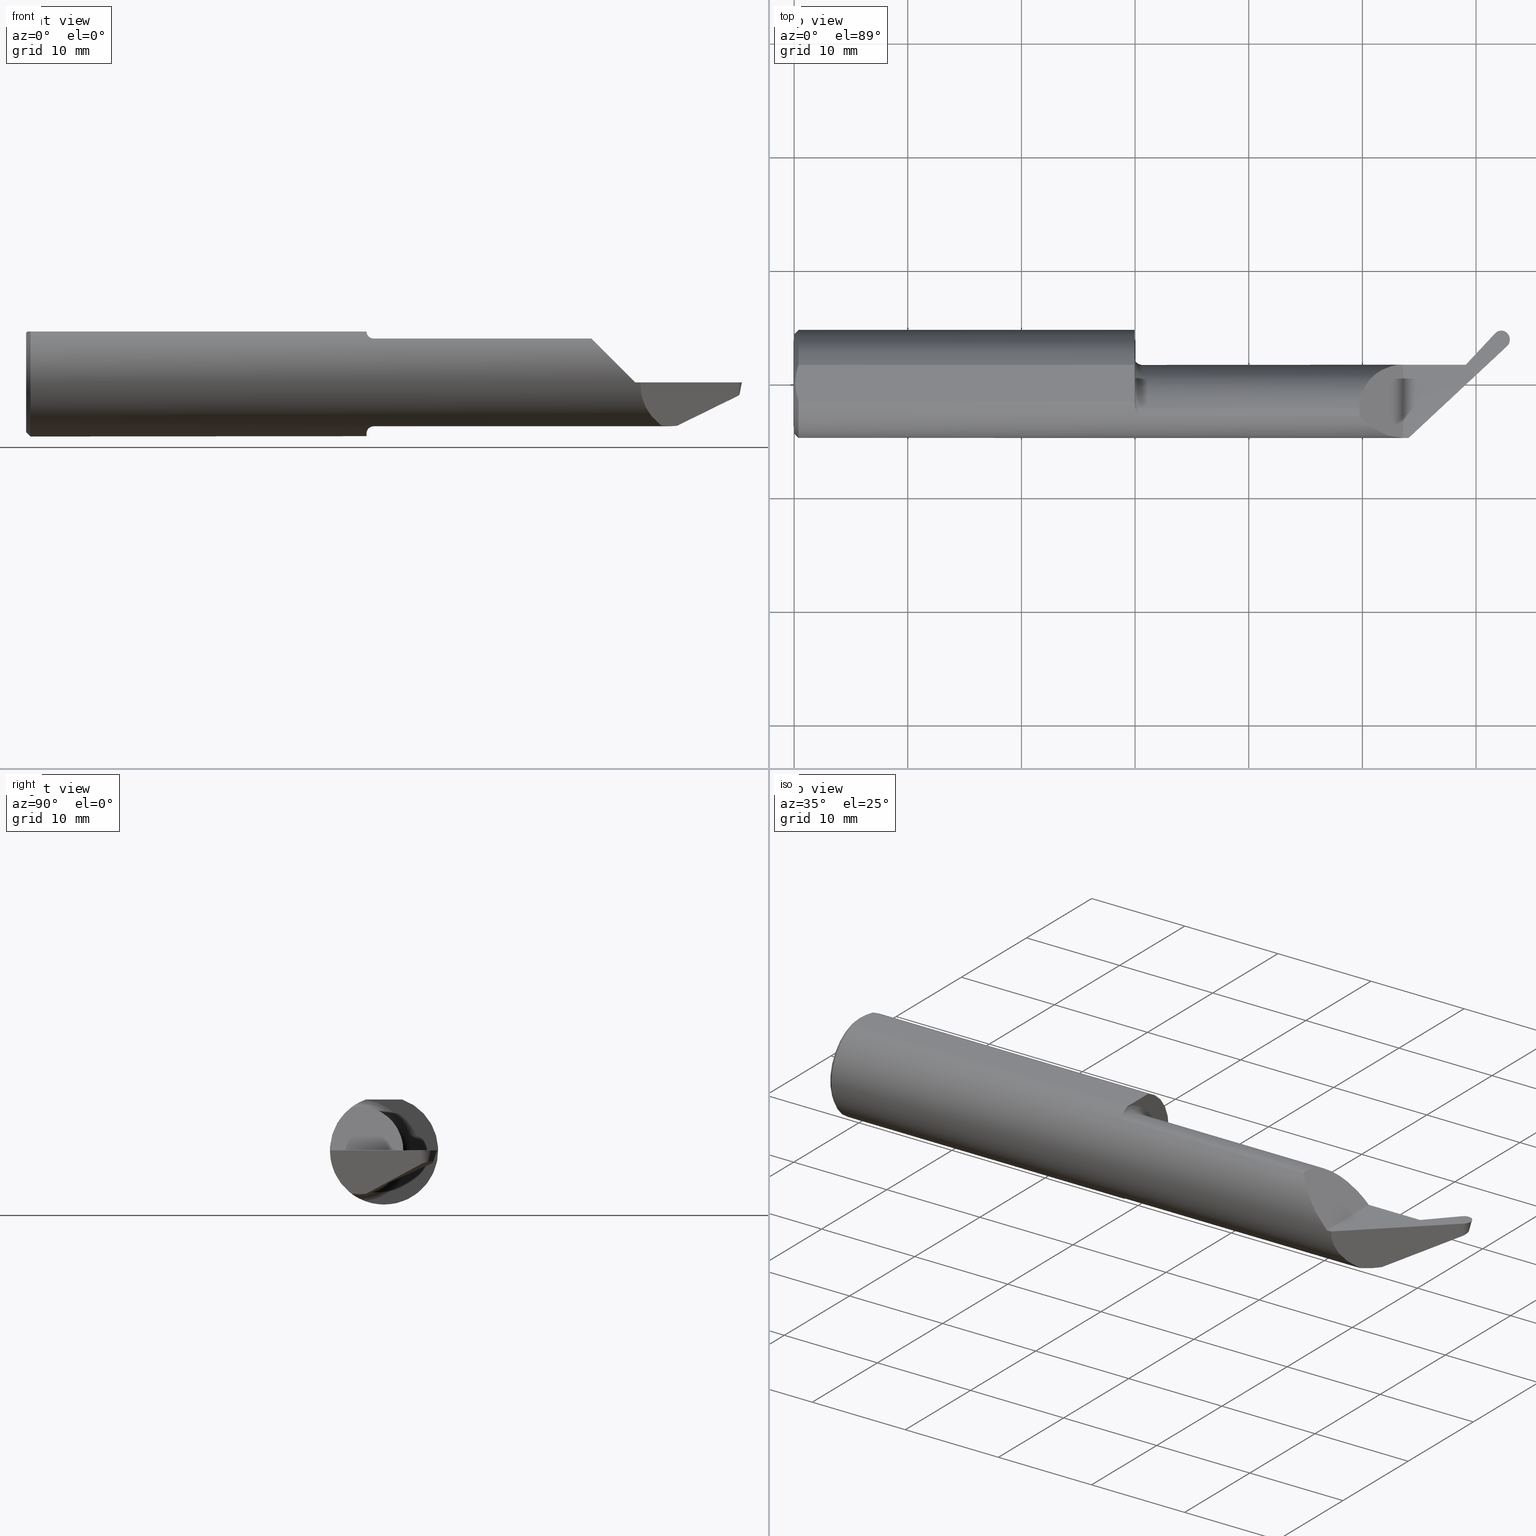
[diagram: canonical four-view strip — front | top / right | iso, engineering-drawing reading convention]
A machine part, canonical four-view strip (front | top / right | iso — engineering-drawing reading convention). The complete STEP part file that produces these views, byte-faithful:
ISO-10303-21;
HEADER;
FILE_DESCRIPTION (( 'STEP AP203' ),
    '1' );
FILE_NAME ('UP37062-20.STEP',
    '2025-06-18T18:15:34',
    ( '' ),
    ( '' ),
    'SwSTEP 2.0',
    'SolidWorks 2024',
    '' );
FILE_SCHEMA (( 'CONFIG_CONTROL_DESIGN' ));
ENDSEC;

DATA;
#1 = CARTESIAN_POINT ( 'NONE',  ( 2.463339288603801247, 0.1890872419260339055, -0.06113822274609712060 ) ) ;
#2 = EDGE_LOOP ( 'NONE', ( #635, #649, #78, #115, #811, #576 ) ) ;
#3 = DIRECTION ( 'NONE',  ( 1.000000000000000000, 0.000000000000000000, 0.000000000000000000 ) ) ;
#4 = CARTESIAN_POINT ( 'NONE',  ( 2.427102923243227739, 0.1800024401401615071, 0.01464397997669205503 ) ) ;
#5 = SHAPE_DEFINITION_REPRESENTATION ( #213, #56 ) ;
#6 = LINE ( 'NONE', #698, #287 ) ;
#7 = ORIENTED_EDGE ( 'NONE', *, *, #668, .F. ) ;
#8 = CC_DESIGN_APPROVAL ( #625, ( #720 ) ) ;
#9 = DIRECTION ( 'NONE',  ( -1.000000000000000000, -0.000000000000000000, -0.000000000000000000 ) ) ;
#10 = PERSON_AND_ORGANIZATION ( #429, #620 ) ;
#11 = PRODUCT_DEFINITION ( 'UNKNOWN', '', #288, #419 ) ;
#12 = CARTESIAN_POINT ( 'NONE',  ( 1.203999999999999959, -0.08534999999999996756, -0.1770000000000002682 ) ) ;
#13 = VERTEX_POINT ( 'NONE', #806 ) ;
#14 = CARTESIAN_POINT ( 'NONE',  ( 2.326765240513953170, 0.02599910668799765637, -0.1034667890668112683 ) ) ;
#15 = DIRECTION ( 'NONE',  ( -1.000000000000000000, -0.000000000000000000, -0.000000000000000000 ) ) ;
#16 = ORIENTED_EDGE ( 'NONE', *, *, #552, .F. ) ;
#17 = ORIENTED_EDGE ( 'NONE', *, *, #19, .T. ) ;
#18 = CIRCLE ( 'NONE', #484, 0.1519999999999999685 ) ;
#19 = EDGE_CURVE ( 'NONE', #674, #614, #315, .T. ) ;
#20 = ORIENTED_EDGE ( 'NONE', *, *, #252, .F. ) ;
#21 =( CONVERSION_BASED_UNIT ( 'INCH', #587 ) LENGTH_UNIT ( ) NAMED_UNIT ( #310 ) );
#22 = VERTEX_POINT ( 'NONE', #425 ) ;
#23 = B_SPLINE_CURVE_WITH_KNOTS ( 'NONE', 3,
 ( #101, #90, #155, #106, #31, #793, #403, #96 ),
 .UNSPECIFIED., .F., .F.,
 ( 4, 2, 2, 4 ),
 ( 0.0006141256517407904384, 0.001146034975910856018, 0.001411989637995888103, 0.001677944300080920405 ),
 .UNSPECIFIED. ) ;
#24 = ADVANCED_FACE ( 'NONE', ( #422 ), #185, .F. ) ;
#25 = CALENDAR_DATE ( 2025, 18, 6 ) ;
#26 = CARTESIAN_POINT ( 'NONE',  ( 2.326765240513953170, 0.01840989495084312255, -0.1110760289161888265 ) ) ;
#27 = VERTEX_POINT ( 'NONE', #60 ) ;
#28 = CARTESIAN_POINT ( 'NONE',  ( 2.310740671077536668, 0.05227606614710521293, -0.06473972895883649270 ) ) ;
#29 = CARTESIAN_POINT ( 'NONE',  ( 2.246793121151486883, -0.06970107841518859149, -0.1513952325811489807 ) ) ;
#30 = APPROVAL_STATUS ( 'not_yet_approved' ) ;
#31 = CARTESIAN_POINT ( 'NONE',  ( 1.191794310168975413, -0.1075702432047989654, 0.1534098348099889875 ) ) ;
#32 = CARTESIAN_POINT ( 'NONE',  ( 1.178999999999999826, -0.08534999999999998144, 0.000000000000000000 ) ) ;
#33 = CARTESIAN_POINT ( 'NONE',  ( 2.313250730142804468, 0.06138847945356275260, -0.03999301210648274069 ) ) ;
#34 = FACE_OUTER_BOUND ( 'NONE', #394, .T. ) ;
#35 = PERSON_AND_ORGANIZATION ( #429, #620 ) ;
#36 = AXIS2_PLACEMENT_3D ( 'NONE', #491, #619, #557 ) ;
#37 = CARTESIAN_POINT ( 'NONE',  ( 0.000000000000000000, 0.000000000000000000, 0.000000000000000000 ) ) ;
#38 = DIRECTION ( 'NONE',  ( -1.000000000000000000, -0.000000000000000000, -0.000000000000000000 ) ) ;
#39 = DIRECTION ( 'NONE',  ( 0.7071067811865507924, 0.000000000000000000, -0.7071067811865443531 ) ) ;
#40 = CARTESIAN_POINT ( 'NONE',  ( 0.01500000000000079568, 0.000000000000000000, -0.1873499999999999888 ) ) ;
#41 = VECTOR ( 'NONE', #584, 39.37007874015748143 ) ;
#42 = AXIS2_PLACEMENT_3D ( 'NONE', #714, #147, #532 ) ;
#43 = CARTESIAN_POINT ( 'NONE',  ( 0.01500000000000079568, 0.06325108694718227509, 0.1763499999999999512 ) ) ;
#44 = CARTESIAN_POINT ( 'NONE',  ( 2.470684143816482603, 0.1557849926128058449, -0.03868056747193334560 ) ) ;
#45 = CARTESIAN_POINT ( 'NONE',  ( 1.200394666912732777, -0.1129504686584646284, -0.1494731217638582133 ) ) ;
#46 = VECTOR ( 'NONE', #673, 39.37007874015748143 ) ;
#47 = ORIENTED_EDGE ( 'NONE', *, *, #335, .F. ) ;
#48 = LINE ( 'NONE', #480, #148 ) ;
#49 = EDGE_CURVE ( 'NONE', #262, #204, #799, .T. ) ;
#50 = DIRECTION ( 'NONE',  ( 0.000000000000000000, 0.000000000000000000, -1.000000000000000000 ) ) ;
#51 = ORIENTED_EDGE ( 'NONE', *, *, #86, .F. ) ;
#52 = CARTESIAN_POINT ( 'NONE',  ( 1.178999999999999826, 0.000000000000000000, 0.000000000000000000 ) ) ;
#53 = CARTESIAN_POINT ( 'NONE',  ( 2.456751398670349307, 0.1699571568638990615, -0.03861894917746992034 ) ) ;
#54 = DIRECTION ( 'NONE',  ( -0.7071067811865434649, 0.000000000000000000, 0.7071067811865515695 ) ) ;
#55 = ORIENTED_EDGE ( 'NONE', *, *, #478, .F. ) ;
#56 = ADVANCED_BREP_SHAPE_REPRESENTATION ( 'UP37062-20', ( #222, #42 ), #702 ) ;
#57 = EDGE_CURVE ( 'NONE', #299, #501, #535, .T. ) ;
#58 = PLANE ( 'NONE',  #308 ) ;
#59 = CARTESIAN_POINT ( 'NONE',  ( 0.008096539338608519515, -0.04280300585742027875, 0.1763499999999999512 ) ) ;
#60 = CARTESIAN_POINT ( 'NONE',  ( 1.203999999999999959, -0.08534999999999996756, -0.1520000000000002460 ) ) ;
#61 = AXIS2_PLACEMENT_3D ( 'NONE', #815, #374, #307 ) ;
#62 = CARTESIAN_POINT ( 'NONE',  ( 2.472349636121112582, 0.2214439739106398852, -0.003375454363053314363 ) ) ;
#63 = VERTEX_POINT ( 'NONE', #298 ) ;
#64 = CARTESIAN_POINT ( 'NONE',  ( 2.432197789042355396, 0.1587788868264130293, -0.05328150004057082001 ) ) ;
#65 = ORIENTED_EDGE ( 'NONE', *, *, #80, .F. ) ;
#66 = CARTESIAN_POINT ( 'NONE',  ( 1.203999999999999959, -0.08534999999999998144, 0.000000000000000000 ) ) ;
#67 = CARTESIAN_POINT ( 'NONE',  ( 2.514167166796823505, 0.1728213680475005343, -0.008816137686678942806 ) ) ;
#68 = CARTESIAN_POINT ( 'NONE',  ( 2.220045936752934601, -0.09461435486697004904, -0.1520000000000001072 ) ) ;
#69 = ORIENTED_EDGE ( 'NONE', *, *, #397, .F. ) ;
#70 = CARTESIAN_POINT ( 'NONE',  ( 2.502978227534758737, 0.1637675242061664982, -0.03771802143383072570 ) ) ;
#71 = AXIS2_PLACEMENT_3D ( 'NONE', #186, #675, #123 ) ;
#72 = DIRECTION ( 'NONE',  ( 0.000000000000000000, 0.000000000000000000, -1.000000000000000000 ) ) ;
#73 = ORIENTED_EDGE ( 'NONE', *, *, #774, .T. ) ;
#74 = AXIS2_PLACEMENT_3D ( 'NONE', #662, #666, #715 ) ;
#75 = LOCAL_TIME ( 11, 15, 34.00000000000000000, #527 ) ;
#76 = CARTESIAN_POINT ( 'NONE',  ( 2.471058033271017251, 0.1315967954936816675, 0.01264345147810534871 ) ) ;
#77 = DIRECTION ( 'NONE',  ( 0.7064334285460631691, -0.6587598294711664026, 0.2588190451025078609 ) ) ;
#78 = ORIENTED_EDGE ( 'NONE', *, *, #641, .F. ) ;
#79 = EDGE_CURVE ( 'NONE', #614, #262, #388, .T. ) ;
#80 = EDGE_CURVE ( 'NONE', #13, #674, #729, .T. ) ;
#81 = APPLICATION_CONTEXT ( 'configuration controlled 3d designs of mechanical parts and assemblies' ) ;
#82 = APPROVAL_DATE_TIME ( #661, #383 ) ;
#83 = VERTEX_POINT ( 'NONE', #474 ) ;
#84 = AXIS2_PLACEMENT_3D ( 'NONE', #110, #276, #795 ) ;
#85 =( LENGTH_UNIT ( ) NAMED_UNIT ( * ) SI_UNIT ( $, .METRE. ) );
#86 = EDGE_CURVE ( 'NONE', #271, #614, #717, .T. ) ;
#87 = ORIENTED_EDGE ( 'NONE', *, *, #659, .F. ) ;
#88 = TOROIDAL_SURFACE ( 'NONE', #731, 0.1770000000000002682, 0.02500000000000001180 ) ;
#89 = ORIENTED_EDGE ( 'NONE', *, *, #802, .T. ) ;
#90 = CARTESIAN_POINT ( 'NONE',  ( 1.182585190695228494, -0.09145938470227675532, 0.1636529957854461481 ) ) ;
#91 = EDGE_LOOP ( 'NONE', ( #632, #73, #800, #105 ) ) ;
#92 = CARTESIAN_POINT ( 'NONE',  ( 2.473051519662936570, 0.1732206932029125290, -4.745349621061712862E-17 ) ) ;
#93 = CARTESIAN_POINT ( 'NONE',  ( 1.203999999999999959, -0.1129504686584648643, -0.1494731217638581855 ) ) ;
#94 = DATE_AND_TIME ( #100, #75 ) ;
#95 = ORIENTED_EDGE ( 'NONE', *, *, #668, .T. ) ;
#96 = CARTESIAN_POINT ( 'NONE',  ( 1.203999999999999959, -0.1129504686584649337, 0.1494731217638581855 ) ) ;
#97 = FACE_OUTER_BOUND ( 'NONE', #589, .T. ) ;
#98 = CARTESIAN_POINT ( 'NONE',  ( 2.311695002015696332, 0.04467455014931975138, -0.07890578795393023148 ) ) ;
#99 = CARTESIAN_POINT ( 'NONE',  ( 0.000000000000000000, 2.202527268266510421E-17, 0.1723499999999993371 ) ) ;
#100 = CALENDAR_DATE ( 2025, 18, 6 ) ;
#101 = CARTESIAN_POINT ( 'NONE',  ( 1.181184626225752821, -0.08535000000000000919, 0.1667794951425384253 ) ) ;
#102 = DIRECTION ( 'NONE',  ( -1.000000000000000000, -0.000000000000000000, -0.000000000000000000 ) ) ;
#103 = DIRECTION ( 'NONE',  ( 0.000000000000000000, 0.000000000000000000, 1.000000000000000000 ) ) ;
#104 = CARTESIAN_POINT ( 'NONE',  ( 0.000000000000000000, 0.1000000000000000056, 0.1763499999999999512 ) ) ;
#105 = ORIENTED_EDGE ( 'NONE', *, *, #711, .T. ) ;
#106 = CARTESIAN_POINT ( 'NONE',  ( 1.189809059610950293, -0.1051947344225451636, 0.1550601383860011895 ) ) ;
#107 = CARTESIAN_POINT ( 'NONE',  ( 2.462682668475958181, 0.1266930978791324380, -0.04822713310730589176 ) ) ;
#108 = CARTESIAN_POINT ( 'NONE',  ( 1.178999999999999826, 0.1000000000000000056, 0.1763499999999999512 ) ) ;
#109 = AXIS2_PLACEMENT_3D ( 'NONE', #319, #77, #461 ) ;
#110 = CARTESIAN_POINT ( 'NONE',  ( 1.203999999999999959, -0.08534999999999998144, 0.000000000000000000 ) ) ;
#111 = EDGE_CURVE ( 'NONE', #439, #377, #638, .T. ) ;
#112 = ORIENTED_EDGE ( 'NONE', *, *, #611, .F. ) ;
#113 = CARTESIAN_POINT ( 'NONE',  ( 1.203999999999999959, -0.08534999999999998144, 0.1770000000000002682 ) ) ;
#114 = CARTESIAN_POINT ( 'NONE',  ( 2.451756554390084553, 0.1705794488028454514, -0.03974429469978325163 ) ) ;
#115 = ORIENTED_EDGE ( 'NONE', *, *, #802, .F. ) ;
#116 = CARTESIAN_POINT ( 'NONE',  ( 2.375479809893838112, 0.02122292913855697988, -0.2485873081548296837 ) ) ;
#117 = CC_DESIGN_SECURITY_CLASSIFICATION ( #720, ( #288 ) ) ;
#118 = ADVANCED_FACE ( 'NONE', ( #773 ), #723, .T. ) ;
#119 = ORIENTED_EDGE ( 'NONE', *, *, #686, .F. ) ;
#120 = CARTESIAN_POINT ( 'NONE',  ( 2.326765240513951838, 0.06665000000000137481, 7.375989582893510493E-15 ) ) ;
#121 = CARTESIAN_POINT ( 'NONE',  ( 2.463369483362413348, 0.1891956732279156395, -0.06094465275953049599 ) ) ;
#122 = ORIENTED_EDGE ( 'NONE', *, *, #57, .T. ) ;
#123 = DIRECTION ( 'NONE',  ( 0.000000000000000000, 0.000000000000000000, 1.000000000000000000 ) ) ;
#124 = CARTESIAN_POINT ( 'NONE',  ( 2.471109707326658800, 0.2169913106136535375, -0.01132428426425348585 ) ) ;
#125 = CC_DESIGN_DATE_AND_TIME_ASSIGNMENT ( #94, #341, ( #11 ) ) ;
#126 = CARTESIAN_POINT ( 'NONE',  ( 2.429387908613748426, 0.1704839345024051767, -0.01581977201304562985 ) ) ;
#127 = AXIS2_PLACEMENT_3D ( 'NONE', #603, #38, #765 ) ;
#128 = CARTESIAN_POINT ( 'NONE',  ( 2.428935188417938207, 0.1723698195470189098, -0.009784041567196845313 ) ) ;
#129 = ORIENTED_EDGE ( 'NONE', *, *, #459, .T. ) ;
#130 = CARTESIAN_POINT ( 'NONE',  ( 2.515512923806559442, 0.1739103250549102475, -0.005339944658970264754 ) ) ;
#131 = ORIENTED_EDGE ( 'NONE', *, *, #518, .F. ) ;
#132 = CARTESIAN_POINT ( 'NONE',  ( 1.220881747418210095, 1.408231747418197122, -0.03799999999999999212 ) ) ;
#133 = EDGE_CURVE ( 'NONE', #13, #768, #463, .T. ) ;
#134 = CARTESIAN_POINT ( 'NONE',  ( 2.472075680294529398, 0.2204601810836911147, -0.005131707040857835453 ) ) ;
#135 = CARTESIAN_POINT ( 'NONE',  ( 1.203999999999999959, -0.1129504686584649337, 0.1494731217638581855 ) ) ;
#136 = ORIENTED_EDGE ( 'NONE', *, *, #19, .F. ) ;
#137 = CARTESIAN_POINT ( 'NONE',  ( 2.491289297629950106, 0.1543090989207645813, -0.06791141915779512483 ) ) ;
#138 = AXIS2_PLACEMENT_3D ( 'NONE', #113, #431, #618 ) ;
#139 = FACE_OUTER_BOUND ( 'NONE', #441, .T. ) ;
#140 = ORIENTED_EDGE ( 'NONE', *, *, #774, .F. ) ;
#141 = EDGE_CURVE ( 'NONE', #501, #426, #275, .T. ) ;
#142 = CIRCLE ( 'NONE', #433, 0.1873499999999999888 ) ;
#143 = ORIENTED_EDGE ( 'NONE', *, *, #141, .T. ) ;
#144 = EDGE_CURVE ( 'NONE', #199, #408, #545, .T. ) ;
#145 = DIRECTION ( 'NONE',  ( -0.000000000000000000, 1.000000000000000000, 1.224646799147353207E-16 ) ) ;
#146 = ORIENTED_EDGE ( 'NONE', *, *, #290, .T. ) ;
#147 = DIRECTION ( 'NONE',  ( 0.000000000000000000, 0.000000000000000000, 1.000000000000000000 ) ) ;
#148 = VECTOR ( 'NONE', #289, 39.37007874015748143 ) ;
#149 = EDGE_LOOP ( 'NONE', ( #16, #188, #522, #749 ) ) ;
#150 = DIRECTION ( 'NONE',  ( -0.2418447626479793833, -0.2418447626479767743, 0.9396926207859069846 ) ) ;
#151 = ORIENTED_EDGE ( 'NONE', *, *, #111, .F. ) ;
#152 = CARTESIAN_POINT ( 'NONE',  ( 2.310851030705861842, 0.04989058623087454930, -0.06958800794743980056 ) ) ;
#153 = CARTESIAN_POINT ( 'NONE',  ( 1.178999999999999604, -0.07190536322760422705, 0.1731690544253196018 ) ) ;
#154 = VERTEX_POINT ( 'NONE', #360 ) ;
#155 = CARTESIAN_POINT ( 'NONE',  ( 1.184708789571851995, -0.09743537618374246978, 0.1601392975941934860 ) ) ;
#156 = CARTESIAN_POINT ( 'NONE',  ( 2.326765240513953170, -0.08534999999999998144, 0.000000000000000000 ) ) ;
#157 = CARTESIAN_POINT ( 'NONE',  ( 2.311140910708375795, 0.05645629897935686842, -0.05498308975101568602 ) ) ;
#158 = CARTESIAN_POINT ( 'NONE',  ( 2.128382079421063278, -0.1873500000000000998, 9.787372373345660285E-18 ) ) ;
#159 = COORDINATED_UNIVERSAL_TIME_OFFSET ( 8, 0, .BEHIND. ) ;
#160 = CARTESIAN_POINT ( 'NONE',  ( 2.469318383173678466, 0.1305782466613288895, 0.000000000000000000 ) ) ;
#161 = CARTESIAN_POINT ( 'NONE',  ( 2.464269348367848611, 0.1276220840894261022, -0.03669544046640969837 ) ) ;
#162 = CC_DESIGN_PERSON_AND_ORGANIZATION_ASSIGNMENT ( #769, #216, ( #712 ) ) ;
#163 = DIRECTION ( 'NONE',  ( 0.000000000000000000, 0.000000000000000000, 1.000000000000000000 ) ) ;
#164 = DIRECTION ( 'NONE',  ( 0.000000000000000000, -1.000000000000000000, 0.000000000000000000 ) ) ;
#165 = ORIENTED_EDGE ( 'NONE', *, *, #260, .F. ) ;
#166 = CARTESIAN_POINT ( 'NONE',  ( 2.110000000000000320, 0.06665000000000012581, -4.745349621061712245E-17 ) ) ;
#167 = FACE_OUTER_BOUND ( 'NONE', #375, .T. ) ;
#168 = CARTESIAN_POINT ( 'NONE',  ( 2.471519586403192914, 0.1445891716110765113, -0.04134697476651000292 ) ) ;
#169 = DIRECTION ( 'NONE',  ( 0.6819983600625176834, 0.5357604036067771247, -0.4978343367016175303 ) ) ;
#170 = AXIS2_PLACEMENT_3D ( 'NONE', #727, #102, #343 ) ;
#171 = ADVANCED_FACE ( 'NONE', ( #428 ), #623, .T. ) ;
#172 =( BOUNDED_CURVE ( )  B_SPLINE_CURVE ( 3, ( #454, #225, #783, #14 ),
 .UNSPECIFIED., .F., .T. ) 
 B_SPLINE_CURVE_WITH_KNOTS ( ( 4, 4 ),
 ( 2.699207237110283764, 2.767232025981910759 ),
 .UNSPECIFIED. ) 
 CURVE ( )  GEOMETRIC_REPRESENTATION_ITEM ( )  RATIONAL_B_SPLINE_CURVE ( ( 1.000000000000000000, 0.9996144228480826621, 0.9996144228480826621, 1.000000000000000000 ) ) 
 REPRESENTATION_ITEM ( '' )  );
#173 = CARTESIAN_POINT ( 'NONE',  ( 1.184689989136573418, -0.09739335834436066430, -0.1601651199371059153 ) ) ;
#174 = EDGE_CURVE ( 'NONE', #408, #199, #494, .T. ) ;
#175 = B_SPLINE_CURVE_WITH_KNOTS ( 'NONE', 3,
 ( #43, #347, #336, #602 ),
 .UNSPECIFIED., .F., .F.,
 ( 4, 4 ),
 ( 0.003872958501701102233, 0.005496776235116782039 ),
 .UNSPECIFIED. ) ;
#176 = CARTESIAN_POINT ( 'NONE',  ( 2.430574497436662096, 0.1655409915207048666, -0.03163954402609100297 ) ) ;
#177 = PLANE ( 'NONE',  #320 ) ;
#178 = ORIENTED_EDGE ( 'NONE', *, *, #393, .F. ) ;
#179 = CARTESIAN_POINT ( 'NONE',  ( 2.462682668475958181, 0.1266930978791324380, -0.04822713310730589176 ) ) ;
#180 = AXIS2_PLACEMENT_3D ( 'NONE', #616, #237, #50 ) ;
#181 = CARTESIAN_POINT ( 'NONE',  ( 2.437615490593813217, 0.1667559360939021573, -0.04436776267736664697 ) ) ;
#182 = CARTESIAN_POINT ( 'NONE',  ( 2.560717964120150292, 0.2276181996966958887, -0.2473073952026218769 ) ) ;
#183 = CARTESIAN_POINT ( 'NONE',  ( 2.465043312580880830, 0.1952065005913523610, -0.05021421097869071398 ) ) ;
#184 = VECTOR ( 'NONE', #15, 39.37007874015748143 ) ;
#185 = PLANE ( 'NONE',  #36 ) ;
#186 = CARTESIAN_POINT ( 'NONE',  ( 2.500000000000000000, 0.000000000000000000, 0.000000000000000000 ) ) ;
#187 = CARTESIAN_POINT ( 'NONE',  ( 2.493456259276552789, 0.1560625566792907537, -0.06231399190138352251 ) ) ;
#188 = ORIENTED_EDGE ( 'NONE', *, *, #813, .F. ) ;
#189 = DIRECTION ( 'NONE',  ( 0.000000000000000000, 0.000000000000000000, -1.000000000000000000 ) ) ;
#190 = AXIS2_PLACEMENT_3D ( 'NONE', #37, #782, #721 ) ;
#191 = CARTESIAN_POINT ( 'NONE',  ( 2.427616197090485262, 0.1778643082853569868, 0.007800939585064861799 ) ) ;
#192 = VERTEX_POINT ( 'NONE', #627 ) ;
#193 = CARTESIAN_POINT ( 'NONE',  ( 0.004000000000000662748, 2.159664630158893524E-17, 0.1763499999999999512 ) ) ;
#194 = CARTESIAN_POINT ( 'NONE',  ( 2.050165707162854289, -0.1873499999999999888, 0.05983429283714646746 ) ) ;
#195 = EDGE_LOOP ( 'NONE', ( #69, #389, #143, #462, #485 ) ) ;
#196 = DIRECTION ( 'NONE',  ( 0.000000000000000000, 0.000000000000000000, 1.000000000000000000 ) ) ;
#197 = EDGE_CURVE ( 'NONE', #63, #321, #604, .T. ) ;
#198 = CARTESIAN_POINT ( 'NONE',  ( 2.326765240513953170, 0.01840989495084312255, -0.1110760289161888265 ) ) ;
#199 = VERTEX_POINT ( 'NONE', #120 ) ;
#200 = CARTESIAN_POINT ( 'NONE',  ( 1.958844637866757665, -0.1038401262696872496, 0.1511553621332442088 ) ) ;
#201 = AXIS2_PLACEMENT_3D ( 'NONE', #497, #678, #683 ) ;
#202 = DATE_AND_TIME ( #766, #473 ) ;
#203 = CARTESIAN_POINT ( 'NONE',  ( 2.110000000000000320, -0.1873499999999999888, -4.745349621061712245E-17 ) ) ;
#204 = VERTEX_POINT ( 'NONE', #798 ) ;
#205 = CIRCLE ( 'NONE', #643, 0.02500000000000000486 ) ;
#206 = B_SPLINE_CURVE_WITH_KNOTS ( 'NONE', 3,
 ( #26, #285, #592, #218 ),
 .UNSPECIFIED., .F., .F.,
 ( 4, 4 ),
 ( 5.692792104250283935E-07, 0.0003263605186733934999 ),
 .UNSPECIFIED. ) ;
#207 = VERTEX_POINT ( 'NONE', #436 ) ;
#208 = CARTESIAN_POINT ( 'NONE',  ( 1.765382620256976676, -0.1129504686584649059, 0.1494731217638580467 ) ) ;
#209 = VERTEX_POINT ( 'NONE', #370 ) ;
#210 = CARTESIAN_POINT ( 'NONE',  ( 2.471600899676762442, 0.1455744333917699807, -0.04107247480222512431 ) ) ;
#211 = VERTEX_POINT ( 'NONE', #233 ) ;
#212 = CARTESIAN_POINT ( 'NONE',  ( 2.464894573375198572, 0.1279881474731972835, -0.03215142207151273912 ) ) ;
#213 = PRODUCT_DEFINITION_SHAPE ( 'NONE', 'NONE',  #11 ) ;
#214 = CARTESIAN_POINT ( 'NONE',  ( 2.315440454153081529, 0.03282998080076678787, -0.09615879041668186356 ) ) ;
#215 = FACE_OUTER_BOUND ( 'NONE', #195, .T. ) ;
#216 = PERSON_AND_ORGANIZATION_ROLE ( 'design_owner' ) ;
#217 = ORIENTED_EDGE ( 'NONE', *, *, #747, .F. ) ;
#218 = CARTESIAN_POINT ( 'NONE',  ( 2.331520170259766100, 0.02973445742920842808, -0.1069377172018710770 ) ) ;
#219 = CARTESIAN_POINT ( 'NONE',  ( 2.467729229122372026, 0.1296478118538354207, -0.01154967436778314704 ) ) ;
#220 = ADVANCED_FACE ( 'NONE', ( #737 ), #58, .F. ) ;
#221 = CARTESIAN_POINT ( 'NONE',  ( 2.458631911691362415, 0.1848108567059725260, -4.745349621061712862E-17 ) ) ;
#222 = MANIFOLD_SOLID_BREP ( 'Fillet1', #381 ) ;
#223 = FACE_OUTER_BOUND ( 'NONE', #735, .T. ) ;
#224 = SECURITY_CLASSIFICATION_LEVEL ( 'unclassified' ) ;
#225 = CARTESIAN_POINT ( 'NONE',  ( 2.324130684797578450, 0.02122147899316073269, -0.1084361721259423650 ) ) ;
#226 = CARTESIAN_POINT ( 'NONE',  ( 2.468381256829095260, 0.1601519732434554533, -0.03814934031722767849 ) ) ;
#227 = CARTESIAN_POINT ( 'NONE',  ( 1.182586893946102169, -0.09146681443154575097, -0.1636491935950596111 ) ) ;
#228 = ADVANCED_FACE ( 'NONE', ( #300 ), #366, .F. ) ;
#229 = ADVANCED_FACE ( 'NONE', ( #244 ), #177, .F. ) ;
#230 = CARTESIAN_POINT ( 'NONE',  ( 2.185022947421021211, -0.08534999999999998144, -4.745349621061712245E-17 ) ) ;
#231 = CARTESIAN_POINT ( 'NONE',  ( 2.479550043966549211, 0.1566078811657158898, -4.745349621061712245E-17 ) ) ;
#232 = CARTESIAN_POINT ( 'NONE',  ( 1.203999999999999959, -0.08534999999999998144, 0.1520000000000002460 ) ) ;
#233 = CARTESIAN_POINT ( 'NONE',  ( 2.110000000000000320, -0.1873499999999999888, -4.745349621061712245E-17 ) ) ;
#234 = CARTESIAN_POINT ( 'NONE',  ( 2.442622959998857368, 0.1690089165912599112, -0.04249917102885993753 ) ) ;
#235 = ORIENTED_EDGE ( 'NONE', *, *, #174, .T. ) ;
#236 = CARTESIAN_POINT ( 'NONE',  ( 1.178999999999999826, -0.08534999999999996756, -0.1520000000000001072 ) ) ;
#237 = DIRECTION ( 'NONE',  ( -1.000000000000000000, -0.000000000000000000, -0.000000000000000000 ) ) ;
#238 = CARTESIAN_POINT ( 'NONE',  ( 2.331520170259766100, 0.02973445742920842808, -0.1069377172018710770 ) ) ;
#239 = CARTESIAN_POINT ( 'NONE',  ( 2.427248490837457862, 0.1793960529025366291, 0.01270325197605672030 ) ) ;
#240 = CC_DESIGN_PERSON_AND_ORGANIZATION_ASSIGNMENT ( #272, #277, ( #11 ) ) ;
#241 = AXIS2_PLACEMENT_3D ( 'NONE', #609, #784, #163 ) ;
#242 = CARTESIAN_POINT ( 'NONE',  ( 2.431761086259567772, 0.1605980485390117452, -0.04745931603909935015 ) ) ;
#243 = B_SPLINE_CURVE_WITH_KNOTS ( 'NONE', 3,
 ( #193, #755, #59, #318 ),
 .UNSPECIFIED., .F., .F.,
 ( 4, 4 ),
 ( 0.005496776235116782039, 0.007121625476792167730 ),
 .UNSPECIFIED. ) ;
#244 = FACE_OUTER_BOUND ( 'NONE', #555, .T. ) ;
#245 = CARTESIAN_POINT ( 'NONE',  ( 2.462761182192116927, 0.1870112249703204388, -0.06484429808834653308 ) ) ;
#246 = ORIENTED_EDGE ( 'NONE', *, *, #641, .T. ) ;
#247 = APPLICATION_CONTEXT ( 'configuration controlled 3d designs of mechanical parts and assemblies' ) ;
#248 = CARTESIAN_POINT ( 'NONE',  ( 2.491962176134814300, 0.1548535774244228780, -0.06617332264390690666 ) ) ;
#249 = APPROVAL_DATE_TIME ( #566, #625 ) ;
#250 = EDGE_CURVE ( 'NONE', #377, #192, #781, .T. ) ;
#251 = CARTESIAN_POINT ( 'NONE',  ( 2.514840045301523830, 0.1733658465511716262, -0.007078041172807704104 ) ) ;
#252 = EDGE_CURVE ( 'NONE', #207, #27, #801, .T. ) ;
#253 = ORIENTED_EDGE ( 'NONE', *, *, #751, .F. ) ;
#254 = CARTESIAN_POINT ( 'NONE',  ( 1.178999999999999826, 0.09165000000000027292, 0.000000000000000000 ) ) ;
#255 = CARTESIAN_POINT ( 'NONE',  ( 2.511440639891334037, 0.1706151223746170675, -0.01585896469722032631 ) ) ;
#256 = APPROVAL_PERSON_ORGANIZATION ( #596, #701, #779 ) ;
#257 = LINE ( 'NONE', #208, #541 ) ;
#258 = ORIENTED_EDGE ( 'NONE', *, *, #434, .T. ) ;
#259 = CARTESIAN_POINT ( 'NONE',  ( 1.958000000000001961, -0.08534999999999998144, 0.1520000000000001072 ) ) ;
#260 = EDGE_CURVE ( 'NONE', #803, #377, #581, .T. ) ;
#261 = FACE_OUTER_BOUND ( 'NONE', #742, .T. ) ;
#262 = VERTEX_POINT ( 'NONE', #179 ) ;
#263 = CARTESIAN_POINT ( 'NONE',  ( 2.470793570452844978, 0.1314419549915169516, 0.01072138518776648806 ) ) ;
#264 = PLANE ( 'NONE',  #743 ) ;
#265 = ORIENTED_EDGE ( 'NONE', *, *, #459, .F. ) ;
#266 = PRODUCT_RELATED_PRODUCT_CATEGORY ( 'detail', '', ( #712 ) ) ;
#267 = CONICAL_SURFACE ( 'NONE', #756, 0.1873499999999999888, 0.7853981633974437271 ) ;
#268 = VERTEX_POINT ( 'NONE', #558 ) ;
#269 = VERTEX_POINT ( 'NONE', #805 ) ;
#270 = CARTESIAN_POINT ( 'NONE',  ( 2.267775410017286664, -0.004023142920380426771, -0.1320314922655561329 ) ) ;
#271 = VERTEX_POINT ( 'NONE', #238 ) ;
#272 = PERSON_AND_ORGANIZATION ( #429, #620 ) ;
#273 = VERTEX_POINT ( 'NONE', #740 ) ;
#274 = CARTESIAN_POINT ( 'NONE',  ( 2.462682668475958181, 0.1266930978791324380, -0.04822713310730589176 ) ) ;
#275 = LINE ( 'NONE', #350, #807 ) ;
#276 = DIRECTION ( 'NONE',  ( -1.000000000000000000, -0.000000000000000000, -0.000000000000000000 ) ) ;
#277 = PERSON_AND_ORGANIZATION_ROLE ( 'creator' ) ;
#278 = EDGE_CURVE ( 'NONE', #439, #63, #322, .T. ) ;
#279 = CARTESIAN_POINT ( 'NONE',  ( 1.765382620256976676, -0.1129504686584649059, -0.1494731217638580467 ) ) ;
#280 = DIRECTION ( 'NONE',  ( -1.000000000000000000, -0.000000000000000000, -0.000000000000000000 ) ) ;
#281 = DIRECTION ( 'NONE',  ( 0.5720007877782551375, 0.7467417517062078236, 0.3393992560978879025 ) ) ;
#282 = DIRECTION ( 'NONE',  ( -1.000000000000000000, -0.000000000000000000, -0.000000000000000000 ) ) ;
#283 = PERSON_AND_ORGANIZATION_ROLE ( 'creator' ) ;
#284 = B_SPLINE_CURVE_WITH_KNOTS ( 'NONE', 3,
 ( #93, #45, #548, #544, #718, #173, #227, #401 ),
 .UNSPECIFIED., .F., .F.,
 ( 4, 2, 2, 4 ),
 ( 1.968246507312182034E-07, 0.0002705785518796310755, 0.0005409602791085309356, 0.001081723733566325668 ),
 .UNSPECIFIED. ) ;
#285 = CARTESIAN_POINT ( 'NONE',  ( 2.328267458866147610, 0.02223848899030945667, -0.1097040600094799784 ) ) ;
#286 = CARTESIAN_POINT ( 'NONE',  ( 2.322206912919363653, 0.06665000000000172176, -0.009735860034116841991 ) ) ;
#287 = VECTOR ( 'NONE', #3, 39.37007874015748143 ) ;
#288 = PRODUCT_DEFINITION_FORMATION_WITH_SPECIFIED_SOURCE ( 'ANY', '', #712, .NOT_KNOWN. ) ;
#289 = DIRECTION ( 'NONE',  ( 1.000000000000000000, 0.000000000000000000, 0.000000000000000000 ) ) ;
#290 = EDGE_CURVE ( 'NONE', #528, #803, #284, .T. ) ;
#291 = DIRECTION ( 'NONE',  ( -1.000000000000000000, -0.000000000000000000, -0.000000000000000000 ) ) ;
#292 = CARTESIAN_POINT ( 'NONE',  ( 2.471662263515684632, 0.1473619133682193827, -0.04059664559615162177 ) ) ;
#293 = CARTESIAN_POINT ( 'NONE',  ( 0.01500000000000079568, 0.000000000000000000, 0.000000000000000000 ) ) ;
#294 = VECTOR ( 'NONE', #490, 39.37007874015748143 ) ;
#295 = ORIENTED_EDGE ( 'NONE', *, *, #349, .T. ) ;
#296 = CARTESIAN_POINT ( 'NONE',  ( 2.200512247315498104, -0.1129504686584649059, -0.1494731217638580467 ) ) ;
#297 = TOROIDAL_SURFACE ( 'NONE', #170, 0.1770000000000002682, 0.02500000000000001180 ) ;
#298 = CARTESIAN_POINT ( 'NONE',  ( 1.181184626225752821, -0.08535000000000000919, 0.1667794951425384253 ) ) ;
#299 = VERTEX_POINT ( 'NONE', #99 ) ;
#300 = FACE_OUTER_BOUND ( 'NONE', #149, .T. ) ;
#301 = CARTESIAN_POINT ( 'NONE',  ( 2.461745005464361036, 0.1670909104184997440, -0.03807143933521284218 ) ) ;
#302 = CARTESIAN_POINT ( 'NONE',  ( 1.178999999999999826, -0.06476652021089572553, -0.1757990908957484666 ) ) ;
#303 =( BOUNDED_SURFACE ( )  B_SPLINE_SURFACE ( 3, 3, ( 
 ( #311, #4, #239, #191, #750, #687, #437, #128, #447, #561, #376, #630, #432, #741, #624, #64 ),
 ( #62, #134, #681, #124, #568, #367, #572, #691, #379, #183, #694, #121, #1, #809, #245, #684 ),
 ( #130, #251, #67, #498, #255, #746, #510, #758, #70, #637, #323, #187, #493, #564, #248, #137 ),
 ( #761, #76, #263, #472, #516, #657, #384, #219, #722, #161, #477, #411, #697, #642, #327, #582 ) ),
 .UNSPECIFIED., .F., .F., .T. ) 
 B_SPLINE_SURFACE_WITH_KNOTS ( ( 4, 4 ),
 ( 4, 2, 2, 2, 2, 2, 2, 4 ),
 ( 0.000000000000000000, 1.000000000000000000 ),
 ( -0.1079739876987041713, 0.03613416797530655949, 0.2560456982408968463, 0.3025234610885755293, 1.029034432750816741, 1.461332467078335862, 1.477215724715413847, 1.621323880389424543 ),
 .UNSPECIFIED. ) 
 GEOMETRIC_REPRESENTATION_ITEM ( )  RATIONAL_B_SPLINE_SURFACE ( (
 ( 1.000000000000000000, 1.000000000000000000, 1.000000000000000000, 1.000000000000000000, 1.000000000000000000, 1.000000000000000000, 1.000000000000000000, 1.000000000000000000, 1.000000000000000000, 1.000000000000000000, 1.000000000000000000, 1.000000000000000000, 1.000000000000000000, 1.000000000000000000, 1.000000000000000000, 1.000000000000000000),
 ( 0.3426147761147324555, 0.3426147761147324555, 0.3426147761147509407, 0.3426147761147509407, 0.3426147761147622095, 0.3426147761147622095, 0.3426147761147435578, 0.3426147761147435578, 0.3426147761147498860, 0.3426147761147498860, 0.3426147761147451676, 0.3426147761147451676, 0.3426147761147276816, 0.3426147761147276816, 0.3426147761147306792, 0.3426147761147306792),
 ( 0.3426147761147324555, 0.3426147761147324555, 0.3426147761147509407, 0.3426147761147509407, 0.3426147761147622095, 0.3426147761147622095, 0.3426147761147435578, 0.3426147761147435578, 0.3426147761147498860, 0.3426147761147498860, 0.3426147761147451676, 0.3426147761147451676, 0.3426147761147276816, 0.3426147761147276816, 0.3426147761147306792, 0.3426147761147306792),
 ( 1.000000000000000000, 1.000000000000000000, 1.000000000000000000, 1.000000000000000000, 1.000000000000000000, 1.000000000000000000, 1.000000000000000000, 1.000000000000000000, 1.000000000000000000, 1.000000000000000000, 1.000000000000000000, 1.000000000000000000, 1.000000000000000000, 1.000000000000000000, 1.000000000000000000, 1.000000000000000000) ) ) 
 REPRESENTATION_ITEM ( '' )  SURFACE ( )  );
#304 = CC_DESIGN_DATE_AND_TIME_ASSIGNMENT ( #202, #503, ( #720 ) ) ;
#305 = ORIENTED_EDGE ( 'NONE', *, *, #725, .T. ) ;
#306 = DIRECTION ( 'NONE',  ( -0.7071067811865515695, 0.000000000000000000, -0.7071067811865434649 ) ) ;
#307 = DIRECTION ( 'NONE',  ( 0.000000000000000000, 0.000000000000000000, -1.000000000000000000 ) ) ;
#308 = AXIS2_PLACEMENT_3D ( 'NONE', #182, #492, #487 ) ;
#309 = ORIENTED_EDGE ( 'NONE', *, *, #711, .F. ) ;
#310 = DIMENSIONAL_EXPONENTS ( 1.000000000000000000, 0.000000000000000000, 0.000000000000000000, 0.000000000000000000, 0.000000000000000000, 0.000000000000000000, 0.000000000000000000 ) ;
#311 = CARTESIAN_POINT ( 'NONE',  ( 2.426957355648955428, 0.1806088273776594588, 0.01658470797712075992 ) ) ;
#312 = EDGE_CURVE ( 'NONE', #768, #211, #340, .T. ) ;
#313 = AXIS2_PLACEMENT_3D ( 'NONE', #410, #291, #533 ) ;
#314 = ORIENTED_EDGE ( 'NONE', *, *, #478, .T. ) ;
#315 = B_SPLINE_CURVE_WITH_KNOTS ( 'NONE', 3,
 ( #685, #126, #176, #242 ),
 .UNSPECIFIED., .F., .F.,
 ( 4, 4 ),
 ( 0.000000000000000000, 1.000000000000000000 ),
 .UNSPECIFIED. ) ;
#316 = EDGE_CURVE ( 'NONE', #192, #83, #595, .T. ) ;
#317 = DIRECTION ( 'NONE',  ( -1.000000000000000000, -0.000000000000000000, -0.000000000000000000 ) ) ;
#318 = CARTESIAN_POINT ( 'NONE',  ( 0.01500000000000016251, -0.06325108694718371838, 0.1763499999999999512 ) ) ;
#319 = CARTESIAN_POINT ( 'NONE',  ( 3.384766979121670349, 1.649782468373000022, -0.7901417016499490131 ) ) ;
#320 = AXIS2_PLACEMENT_3D ( 'NONE', #116, #560, #808 ) ;
#321 = VERTEX_POINT ( 'NONE', #232 ) ;
#322 = B_SPLINE_CURVE_WITH_KNOTS ( 'NONE', 3,
 ( #417, #153, #792, #654 ),
 .UNSPECIFIED., .F., .F.,
 ( 4, 4 ),
 ( 4.102419206624730480E-05, 0.0006141256517407904384 ),
 .UNSPECIFIED. ) ;
#323 = CARTESIAN_POINT ( 'NONE',  ( 2.495548934435948496, 0.1577559034444405150, -0.05690845230854599951 ) ) ;
#324 = CALENDAR_DATE ( 2025, 18, 6 ) ;
#325 = LINE ( 'NONE', #575, #184 ) ;
#326 = ORIENTED_EDGE ( 'NONE', *, *, #250, .T. ) ;
#327 = CARTESIAN_POINT ( 'NONE',  ( 2.462066297454155617, 0.1263322184209516308, -0.05270680239171855741 ) ) ;
#328 = FACE_OUTER_BOUND ( 'NONE', #448, .T. ) ;
#329 = ORIENTED_EDGE ( 'NONE', *, *, #550, .T. ) ;
#330 = PERSON_AND_ORGANIZATION ( #429, #620 ) ;
#331 = ORIENTED_EDGE ( 'NONE', *, *, #690, .T. ) ;
#332 = ORIENTED_EDGE ( 'NONE', *, *, #518, .T. ) ;
#333 = APPLICATION_PROTOCOL_DEFINITION ( 'international standard', 'config_control_design', 1994, #247 ) ;
#334 = EDGE_LOOP ( 'NONE', ( #329, #122 ) ) ;
#335 = EDGE_CURVE ( 'NONE', #273, #192, #48, .T. ) ;
#336 = CARTESIAN_POINT ( 'NONE',  ( 0.004000000000000663615, 0.02174349820064852903, 0.1763499999999999512 ) ) ;
#337 = ORIENTED_EDGE ( 'NONE', *, *, #671, .T. ) ;
#338 = CARTESIAN_POINT ( 'NONE',  ( 2.326765240513951838, 0.06665000000000137481, 7.375989582893510493E-15 ) ) ;
#339 = EDGE_CURVE ( 'NONE', #209, #271, #730, .T. ) ;
#340 = LINE ( 'NONE', #413, #46 ) ;
#341 = DATE_TIME_ROLE ( 'creation_date' ) ;
#342 = CARTESIAN_POINT ( 'NONE',  ( 2.428201319790835200, 0.1754268774841054312, -4.745349621061712245E-17 ) ) ;
#343 = DIRECTION ( 'NONE',  ( 0.000000000000000000, 0.000000000000000000, 1.000000000000000000 ) ) ;
#344 = CARTESIAN_POINT ( 'NONE',  ( 2.570326402591598836, 0.3414937907379163029, 0.03475904150325300618 ) ) ;
#345 = DIRECTION ( 'NONE',  ( 1.000000000000000000, -0.000000000000000000, -0.000000000000000000 ) ) ;
#346 = DATE_AND_TIME ( #407, #744 ) ;
#347 = CARTESIAN_POINT ( 'NONE',  ( 0.008079618022130571897, 0.04275288484297757458, 0.1763499999999999512 ) ) ;
#348 = CARTESIAN_POINT ( 'NONE',  ( 1.203999999999999959, -0.1129504686584648643, -0.1494731217638581855 ) ) ;
#349 = EDGE_CURVE ( 'NONE', #704, #321, #438, .T. ) ;
#350 = CARTESIAN_POINT ( 'NONE',  ( 0.01500000000000079568, 0.000000000000000000, -0.1873499999999999888 ) ) ;
#351 = DIRECTION ( 'NONE',  ( -0.000000000000000000, 0.000000000000000000, -1.000000000000000000 ) ) ;
#352 = VECTOR ( 'NONE', #281, 39.37007874015748854 ) ;
#353 = PLANE ( 'NONE',  #190 ) ;
#354 = CARTESIAN_POINT ( 'NONE',  ( 2.470579990988149621, 0.1369212511648607022, -0.04356225515118943015 ) ) ;
#355 = AXIS2_PLACEMENT_3D ( 'NONE', #524, #457, #757 ) ;
#356 = CARTESIAN_POINT ( 'NONE',  ( 2.500000000000000000, -0.06325108694718227509, 0.1763499999999999512 ) ) ;
#357 = ORIENTED_EDGE ( 'NONE', *, *, #611, .T. ) ;
#358 = DIRECTION ( 'NONE',  ( 0.000000000000000000, 0.000000000000000000, -1.000000000000000000 ) ) ;
#359 = DIRECTION ( 'NONE',  ( -0.6954206866754744087, -0.6321757989175350589, -0.3416779592054305925 ) ) ;
#360 = CARTESIAN_POINT ( 'NONE',  ( 0.004000000000000662748, 2.159664630158893524E-17, 0.1763499999999999512 ) ) ;
#361 = EDGE_LOOP ( 'NONE', ( #131, #563, #112 ) ) ;
#362 = CARTESIAN_POINT ( 'NONE',  ( 1.181184626225752821, -0.08534999999999998144, -0.1667794951425384531 ) ) ;
#363 = EDGE_CURVE ( 'NONE', #83, #395, #670, .T. ) ;
#364 = LOCAL_TIME ( 11, 15, 34.00000000000000000, #753 ) ;
#365 = CARTESIAN_POINT ( 'NONE',  ( 2.427965916141635816, 0.09513365326770921448, -0.06528436093372974591 ) ) ;
#366 = PLANE ( 'NONE',  #767 ) ;
#367 = CARTESIAN_POINT ( 'NONE',  ( 2.470185228462886240, 0.2136714481153273448, -0.01725085461916255405 ) ) ;
#368 = ORIENTED_EDGE ( 'NONE', *, *, #197, .F. ) ;
#369 = ADVANCED_FACE ( 'NONE', ( #215 ), #267, .T. ) ;
#370 = CARTESIAN_POINT ( 'NONE',  ( 2.326765240513953170, 0.02599910668799765637, -0.1034667890668112683 ) ) ;
#371 = DIRECTION ( 'NONE',  ( 0.000000000000000000, 0.000000000000000000, 1.000000000000000000 ) ) ;
#372 = EDGE_CURVE ( 'NONE', #207, #204, #509, .T. ) ;
#373 = AXIS2_PLACEMENT_3D ( 'NONE', #440, #634, #371 ) ;
#374 = DIRECTION ( 'NONE',  ( 1.000000000000000000, -0.000000000000000000, -0.000000000000000000 ) ) ;
#375 = EDGE_LOOP ( 'NONE', ( #763, #512, #151, #646, #707, #314 ) ) ;
#376 = CARTESIAN_POINT ( 'NONE',  ( 2.431276277836736277, 0.1626176026970145294, -0.04099578075945708305 ) ) ;
#377 = VERTEX_POINT ( 'NONE', #483 ) ;
#378 = DIRECTION ( 'NONE',  ( 0.9684408309910902402, 0.000000000000000000, 0.2492435693639584726 ) ) ;
#379 = CARTESIAN_POINT ( 'NONE',  ( 2.467246258538803527, 0.2031174198757563776, -0.03609175267370531154 ) ) ;
#380 = CARTESIAN_POINT ( 'NONE',  ( 1.960526878236143800, -0.1129504686584648504, 0.1494731217638580745 ) ) ;
#381 = CLOSED_SHELL ( 'NONE', ( #409, #488, #427, #574, #613, #486, #570, #118, #748, #171, #424, #24, #228, #612, #369, #716, #810, #220, #229, #772 ) ) ;
#382 = VERTEX_POINT ( 'NONE', #420 ) ;
#383 = APPROVAL ( #402, 'UNSPECIFIED' ) ;
#384 = CARTESIAN_POINT ( 'NONE',  ( 2.469147794075706948, 0.1304783683428027419, -0.001239809652698645485 ) ) ;
#385 = AXIS2_PLACEMENT_3D ( 'NONE', #66, #317, #446 ) ;
#386 = APPROVAL_PERSON_ORGANIZATION ( #10, #625, #450 ) ;
#387 = EDGE_LOOP ( 'NONE', ( #475, #682 ) ) ;
#388 = B_SPLINE_CURVE_WITH_KNOTS ( 'NONE', 3,
 ( #554, #430, #181, #234, #489, #734, #677, #679, #114, #53, #301, #399, #791, #599, #226, #44, #479, #292, #210, #168, #354, #728, #107 ),
 .UNSPECIFIED., .F., .F.,
 ( 4, 1, 1, 1, 2, 2, 1, 1, 2, 2, 1, 1, 2, 2, 4 ),
 ( 0.000000000000000000, 0.1249999999999926448, 0.1874999999999892031, 0.2187499999999875100, 0.2343749999999915345, 0.2499999999999955591, 0.3750000000000114353, 0.4375000000000242029, 0.4687500000000225375, 0.5000000000000208722, 0.6250000000000152101, 0.6875000000000097700, 0.7187500000000078826, 0.7500000000000059952, 1.000000000000000000 ),
 .UNSPECIFIED. ) ;
#389 = ORIENTED_EDGE ( 'NONE', *, *, #550, .F. ) ;
#390 = CARTESIAN_POINT ( 'NONE',  ( 1.996600064346650605, -0.1606879575236964397, 0.1133999356533508807 ) ) ;
#391 = ORIENTED_EDGE ( 'NONE', *, *, #86, .T. ) ;
#392 = VECTOR ( 'NONE', #164, 39.37007874015748143 ) ;
#393 = EDGE_CURVE ( 'NONE', #382, #768, #814, .T. ) ;
#394 = EDGE_LOOP ( 'NONE', ( #466, #47, #337, #258, #644 ) ) ;
#395 = VERTEX_POINT ( 'NONE', #406 ) ;
#396 = CARTESIAN_POINT ( 'NONE',  ( 2.210195756672142853, -0.1038401262696872357, -0.1511553621332442365 ) ) ;
#397 = EDGE_CURVE ( 'NONE', #299, #154, #615, .T. ) ;
#398 = ORIENTED_EDGE ( 'NONE', *, *, #141, .F. ) ;
#399 = CARTESIAN_POINT ( 'NONE',  ( 2.463706470190444531, 0.1654038964026219583, -0.03800080510291158759 ) ) ;
#400 = AXIS2_PLACEMENT_3D ( 'NONE', #104, #351, #606 ) ;
#401 = CARTESIAN_POINT ( 'NONE',  ( 1.181184626225752821, -0.08534999999999998144, -0.1667794951425384531 ) ) ;
#402 = APPROVAL_STATUS ( 'not_yet_approved' ) ;
#403 = CARTESIAN_POINT ( 'NONE',  ( 1.200386741880977493, -0.1129504686584696382, 0.1494731217638545218 ) ) ;
#404 = DIRECTION ( 'NONE',  ( 0.000000000000000000, 0.000000000000000000, -1.000000000000000000 ) ) ;
#405 = CARTESIAN_POINT ( 'NONE',  ( 2.478866630901332968, 0.1436261120971768779, -4.745349621061711013E-17 ) ) ;
#406 = CARTESIAN_POINT ( 'NONE',  ( 0.01500000000000016251, -0.06325108694718371838, 0.1763499999999999512 ) ) ;
#407 = CALENDAR_DATE ( 2025, 18, 6 ) ;
#408 = VERTEX_POINT ( 'NONE', #660 ) ;
#409 = ADVANCED_FACE ( 'NONE', ( #223 ), #88, .F. ) ;
#410 = CARTESIAN_POINT ( 'NONE',  ( 1.178999999999999826, -0.08534999999999998144, 0.000000000000000000 ) ) ;
#411 = CARTESIAN_POINT ( 'NONE',  ( 2.462653520014117081, 0.1266760317278297354, -0.04843897867525236156 ) ) ;
#412 = CARTESIAN_POINT ( 'NONE',  ( 1.178999999999999826, -0.08534999999999998144, 0.000000000000000000 ) ) ;
#413 = CARTESIAN_POINT ( 'NONE',  ( 2.500000000000000000, -0.1873499999999999888, -4.745349621061712245E-17 ) ) ;
#414 = ORIENTED_EDGE ( 'NONE', *, *, #335, .T. ) ;
#415 = LINE ( 'NONE', #230, #565 ) ;
#416 = CARTESIAN_POINT ( 'NONE',  ( 2.475531767914440628, 0.1363873478363286096, -4.745349621061712245E-17 ) ) ;
#417 = CARTESIAN_POINT ( 'NONE',  ( 1.178999999999999826, -0.06476652021089572553, 0.1757990908957484666 ) ) ;
#418 = CC_DESIGN_PERSON_AND_ORGANIZATION_ASSIGNMENT ( #35, #283, ( #288 ) ) ;
#419 = DESIGN_CONTEXT ( 'detailed design', #247, 'design' ) ;
#420 = CARTESIAN_POINT ( 'NONE',  ( 2.200512247315498104, -0.1129504686584649059, -0.1494731217638580467 ) ) ;
#421 =( BOUNDED_CURVE ( )  B_SPLINE_CURVE ( 3, ( #607, #476, #776, #166 ),
 .UNSPECIFIED., .F., .F. ) 
 B_SPLINE_CURVE_WITH_KNOTS ( ( 4, 4 ),
 ( 0.000000000000000000, 1.570796326794896780 ),
 .UNSPECIFIED. ) 
 CURVE ( )  GEOMETRIC_REPRESENTATION_ITEM ( )  RATIONAL_B_SPLINE_CURVE ( ( 1.000000000000000000, 0.8047378541243649375, 0.8047378541243649375, 1.000000000000000000 ) ) 
 REPRESENTATION_ITEM ( '' )  );
#422 = FACE_OUTER_BOUND ( 'NONE', #2, .T. ) ;
#423 = CARTESIAN_POINT ( 'NONE',  ( 2.322652115599469269, 0.01870869955986064273, -0.1107961508623389602 ) ) ;
#424 = ADVANCED_FACE ( 'NONE', ( #34 ), #665, .F. ) ;
#425 = CARTESIAN_POINT ( 'NONE',  ( 1.960526878236143800, -0.1129504686584648504, 0.1494731217638580745 ) ) ;
#426 = VERTEX_POINT ( 'NONE', #40 ) ;
#427 = ADVANCED_FACE ( 'NONE', ( #577 ), #508, .T. ) ;
#428 = FACE_OUTER_BOUND ( 'NONE', #692, .T. ) ;
#429 = PERSON ( 'UNSPECIFIED', 'UNSPECIFIED', 'UNSPECIFIED', ('UNSPECIFIED'), ('UNSPECIFIED'), ('UNSPECIFIED') ) ;
#430 = CARTESIAN_POINT ( 'NONE',  ( 2.433938748196983859, 0.1634324891172499739, -0.04616937216122610904 ) ) ;
#431 = DIRECTION ( 'NONE',  ( 0.000000000000000000, -1.000000000000000000, 0.000000000000000000 ) ) ;
#432 = CARTESIAN_POINT ( 'NONE',  ( 2.431745042146090885, 0.1606648830958575525, -0.04724541362190757404 ) ) ;
#433 = AXIS2_PLACEMENT_3D ( 'NONE', #770, #639, #72 ) ;
#434 = EDGE_CURVE ( 'NONE', #154, #395, #243, .T. ) ;
#435 = ORIENTED_EDGE ( 'NONE', *, *, #250, .F. ) ;
#436 = CARTESIAN_POINT ( 'NONE',  ( 2.229980741030837876, -0.08534999999999996756, -0.1520000000000001072 ) ) ;
#437 = CARTESIAN_POINT ( 'NONE',  ( 2.428154371329845240, 0.1756224494979528872, 0.0006259236011380060359 ) ) ;
#438 = CIRCLE ( 'NONE', #84, 0.1520000000000002460 ) ;
#439 = VERTEX_POINT ( 'NONE', #628 ) ;
#440 = CARTESIAN_POINT ( 'NONE',  ( 1.203999999999999959, -0.08534999999999998144, 0.000000000000000000 ) ) ;
#441 = EDGE_LOOP ( 'NONE', ( #368, #95, #295 ) ) ;
#442 = AXIS2_PLACEMENT_3D ( 'NONE', #156, #449, #404 ) ;
#443 = FACE_OUTER_BOUND ( 'NONE', #738, .T. ) ;
#444 = COORDINATED_UNIVERSAL_TIME_OFFSET ( 8, 0, .BEHIND. ) ;
#445 = ORIENTED_EDGE ( 'NONE', *, *, #631, .T. ) ;
#446 = DIRECTION ( 'NONE',  ( 0.000000000000000000, 0.000000000000000000, 1.000000000000000000 ) ) ;
#447 = CARTESIAN_POINT ( 'NONE',  ( 2.429669057044955949, 0.1693127616093837162, -0.01956808313555956358 ) ) ;
#448 = EDGE_LOOP ( 'NONE', ( #391, #569, #699, #305, #357 ) ) ;
#449 = DIRECTION ( 'NONE',  ( 1.000000000000000000, 0.000000000000000000, 0.000000000000000000 ) ) ;
#450 = APPROVAL_ROLE ( '' ) ;
#451 = PLANE ( 'NONE',  #456 ) ;
#452 = VECTOR ( 'NONE', #359, 39.37007874015748143 ) ;
#453 = ORIENTED_EDGE ( 'NONE', *, *, #79, .F. ) ;
#454 = CARTESIAN_POINT ( 'NONE',  ( 2.322652115599469269, 0.01870869955986064273, -0.1107961508623389602 ) ) ;
#455 = ORIENTED_EDGE ( 'NONE', *, *, #813, .T. ) ;
#456 = AXIS2_PLACEMENT_3D ( 'NONE', #132, #150, #378 ) ;
#457 = DIRECTION ( 'NONE',  ( -1.000000000000000000, -0.000000000000000000, -0.000000000000000000 ) ) ;
#458 = ORIENTED_EDGE ( 'NONE', *, *, #686, .T. ) ;
#459 = EDGE_CURVE ( 'NONE', #426, #273, #588, .T. ) ;
#460 = ORIENTED_EDGE ( 'NONE', *, *, #57, .F. ) ;
#461 = DIRECTION ( 'NONE',  ( 0.6819983600625042497, 0.7313537016191651308, 0.000000000000000000 ) ) ;
#462 = ORIENTED_EDGE ( 'NONE', *, *, #690, .F. ) ;
#463 = LINE ( 'NONE', #605, #739 ) ;
#464 = CARTESIAN_POINT ( 'NONE',  ( 0.01500000000000079568, 2.294375778202566330E-17, 0.1873499999999999888 ) ) ;
#465 = APPLICATION_PROTOCOL_DEFINITION ( 'international standard', 'config_control_design', 1994, #81 ) ;
#466 = ORIENTED_EDGE ( 'NONE', *, *, #316, .F. ) ;
#467 = DIRECTION ( 'NONE',  ( -0.000000000000000000, 1.000000000000000000, -0.000000000000000000 ) ) ;
#468 = CARTESIAN_POINT ( 'NONE',  ( 2.318616529654808467, 0.02598289541876283235, -0.1039642947416279523 ) ) ;
#469 = CARTESIAN_POINT ( 'NONE',  ( 2.229980741030837876, -0.08534999999999996756, -0.1520000000000001072 ) ) ;
#470 = COORDINATED_UNIVERSAL_TIME_OFFSET ( 8, 0, .BEHIND. ) ;
#471 = CARTESIAN_POINT ( 'NONE',  ( 2.467106478274438519, 0.1292831970672631003, -0.01607571103575617874 ) ) ;
#472 = CARTESIAN_POINT ( 'NONE',  ( 2.470125532814366753, 0.1310508252133640028, 0.005866212598388468973 ) ) ;
#473 = LOCAL_TIME ( 11, 15, 34.00000000000000000, #444 ) ;
#474 = CARTESIAN_POINT ( 'NONE',  ( 1.178999999999999826, -0.06325108694718373226, 0.1763499999999999512 ) ) ;
#475 = ORIENTED_EDGE ( 'NONE', *, *, #174, .F. ) ;
#476 = CARTESIAN_POINT ( 'NONE',  ( 1.958000000000001961, 0.003689538519289640821, 0.1520000000000001072 ) ) ;
#477 = CARTESIAN_POINT ( 'NONE',  ( 2.463476008421919161, 0.1271575909842942442, -0.04246128678686777319 ) ) ;
#478 = EDGE_CURVE ( 'NONE', #321, #27, #520, .T. ) ;
#479 = CARTESIAN_POINT ( 'NONE',  ( 2.471629960348861843, 0.1499933603679583782, -0.03992771481021711172 ) ) ;
#480 = CARTESIAN_POINT ( 'NONE',  ( 2.500000000000000000, 0.06325108694718227509, 0.1763499999999999512 ) ) ;
#481 = CARTESIAN_POINT ( 'NONE',  ( 2.110000000000000320, 0.2000000000000000111, -4.745349621061712245E-17 ) ) ;
#482 = CARTESIAN_POINT ( 'NONE',  ( 2.476262188617134097, 0.1681126724613578871, -4.745349621061712245E-17 ) ) ;
#483 = CARTESIAN_POINT ( 'NONE',  ( 1.178999999999999826, -0.06476652021089572553, -0.1757990908957484666 ) ) ;
#484 = AXIS2_PLACEMENT_3D ( 'NONE', #700, #9, #196 ) ;
#485 = ORIENTED_EDGE ( 'NONE', *, *, #434, .F. ) ;
#486 = ADVANCED_FACE ( 'NONE', ( #443 ), #303, .T. ) ;
#487 = DIRECTION ( 'NONE',  ( -0.7313537016191671292, -0.6819983600625020292, 0.000000000000000000 ) ) ;
#488 = ADVANCED_FACE ( 'NONE', ( #167 ), #297, .F. ) ;
#489 = CARTESIAN_POINT ( 'NONE',  ( 2.445306178853565715, 0.1697293132627534784, -0.04162319672527225317 ) ) ;
#490 = DIRECTION ( 'NONE',  ( -1.000000000000000000, -0.000000000000000000, -0.000000000000000000 ) ) ;
#491 = CARTESIAN_POINT ( 'NONE',  ( 2.110000000000000320, 0.2000000000000000111, -4.745349621061712245E-17 ) ) ;
#492 = DIRECTION ( 'NONE',  ( -0.6815829050885312546, 0.7309081807046567958, 0.03489949670248772978 ) ) ;
#493 = CARTESIAN_POINT ( 'NONE',  ( 2.493382096210603471, 0.1560025455556163232, -0.06250556075880323026 ) ) ;
#494 = CIRCLE ( 'NONE', #201, 2.000000000000000888 ) ;
#495 = EDGE_CURVE ( 'NONE', #408, #209, #172, .T. ) ;
#496 = ORIENTED_EDGE ( 'NONE', *, *, #252, .T. ) ;
#497 = CARTESIAN_POINT ( 'NONE',  ( 3.737983693394701934, 1.320402553637416876, -0.6607321790986950827 ) ) ;
#498 = CARTESIAN_POINT ( 'NONE',  ( 2.512467464091488800, 0.1714460059591033370, -0.01320659944887696627 ) ) ;
#499 = TOROIDAL_SURFACE ( 'NONE', #355, 0.1770000000000002682, 0.02500000000000001180 ) ;
#500 = CC_DESIGN_APPROVAL ( #383, ( #11 ) ) ;
#501 = VERTEX_POINT ( 'NONE', #663 ) ;
#502 = DIRECTION ( 'NONE',  ( 1.000000000000000000, -0.000000000000000000, -0.000000000000000000 ) ) ;
#503 = DATE_TIME_ROLE ( 'classification_date' ) ;
#504 = ORIENTED_EDGE ( 'NONE', *, *, #372, .F. ) ;
#505 =( BOUNDED_CURVE ( )  B_SPLINE_CURVE ( 3, ( #708, #693, #270, #198 ),
 .UNSPECIFIED., .F., .T. ) 
 B_SPLINE_CURVE_WITH_KNOTS ( ( 4, 4 ),
 ( 6.185793117290076637, 6.782643011643239461 ),
 .UNSPECIFIED. ) 
 CURVE ( )  GEOMETRIC_REPRESENTATION_ITEM ( )  RATIONAL_B_SPLINE_CURVE ( ( 1.000000000000000000, 0.9705338425826713911, 0.9705338425826713911, 1.000000000000000000 ) ) 
 REPRESENTATION_ITEM ( '' )  );
#506 = CARTESIAN_POINT ( 'NONE',  ( 0.01500000000000079568, 0.000000000000000000, 0.000000000000000000 ) ) ;
#507 = EDGE_LOOP ( 'NONE', ( #580, #689, #626, #178, #706, #709 ) ) ;
#508 = CONICAL_SURFACE ( 'NONE', #629, 0.1873499999999999888, 0.7853981633974437271 ) ;
#509 =( BOUNDED_CURVE ( )  B_SPLINE_CURVE ( 3, ( #469, #732, #29, #537 ),
 .UNSPECIFIED., .F., .T. ) 
 B_SPLINE_CURVE_WITH_KNOTS ( ( 4, 4 ),
 ( 1.523084436873743730, 1.677591342623069304 ),
 .UNSPECIFIED. ) 
 CURVE ( )  GEOMETRIC_REPRESENTATION_ITEM ( )  RATIONAL_B_SPLINE_CURVE ( ( 1.000000000000000000, 0.9980116238697762654, 0.9980116238697762654, 1.000000000000000000 ) ) 
 REPRESENTATION_ITEM ( '' )  );
#510 = CARTESIAN_POINT ( 'NONE',  ( 2.509979782135859594, 0.1694330283723866903, -0.01963247173240202995 ) ) ;
#511 = CARTESIAN_POINT ( 'NONE',  ( 1.181184626225752821, -0.08534999999999998144, -0.1667794951425384531 ) ) ;
#512 = ORIENTED_EDGE ( 'NONE', *, *, #260, .T. ) ;
#513 = CARTESIAN_POINT ( 'NONE',  ( 1.960526878236143800, -0.1129504686584648504, 0.1494731217638580745 ) ) ;
#514 = CARTESIAN_POINT ( 'NONE',  ( 2.229980741030837876, -0.08534999999999996756, -0.1520000000000001072 ) ) ;
#515 = ORIENTED_EDGE ( 'NONE', *, *, #278, .F. ) ;
#516 = CARTESIAN_POINT ( 'NONE',  ( 2.469721957994032824, 0.1308145359373552030, 0.002933106299204673618 ) ) ;
#517 = APPROVAL_STATUS ( 'not_yet_approved' ) ;
#518 = EDGE_CURVE ( 'NONE', #209, #585, #18, .T. ) ;
#519 = DIRECTION ( 'NONE',  ( 1.000000000000000000, 0.000000000000000000, 0.000000000000000000 ) ) ;
#520 = CIRCLE ( 'NONE', #373, 0.1520000000000002460 ) ;
#521 = ORIENTED_EDGE ( 'NONE', *, *, #393, .T. ) ;
#522 = ORIENTED_EDGE ( 'NONE', *, *, #633, .T. ) ;
#523 = ORIENTED_EDGE ( 'NONE', *, *, #659, .T. ) ;
#524 = CARTESIAN_POINT ( 'NONE',  ( 1.203999999999999959, -0.08534999999999998144, 0.000000000000000000 ) ) ;
#525 = ORIENTED_EDGE ( 'NONE', *, *, #787, .T. ) ;
#526 = CARTESIAN_POINT ( 'NONE',  ( 2.428201319790835200, 0.1754268774841054312, -4.745349621061712245E-17 ) ) ;
#527 = COORDINATED_UNIVERSAL_TIME_OFFSET ( 8, 0, .BEHIND. ) ;
#528 = VERTEX_POINT ( 'NONE', #348 ) ;
#529 = LINE ( 'NONE', #481, #788 ) ;
#530 = CARTESIAN_POINT ( 'NONE',  ( 2.434226744680231924, 0.1818717855234817660, -4.745349621061712862E-17 ) ) ;
#531 = CARTESIAN_POINT ( 'NONE',  ( 2.185022947421003003, -0.08534999999998299502, -6.672824853243337066E-15 ) ) ;
#532 = DIRECTION ( 'NONE',  ( 1.000000000000000000, 0.000000000000000000, 0.000000000000000000 ) ) ;
#533 = DIRECTION ( 'NONE',  ( 0.000000000000000000, 0.000000000000000000, 1.000000000000000000 ) ) ;
#534 = DIRECTION ( 'NONE',  ( 0.000000000000000000, 0.000000000000000000, 1.000000000000000000 ) ) ;
#535 = CIRCLE ( 'NONE', #180, 0.1723499999999993371 ) ;
#536 = CARTESIAN_POINT ( 'NONE',  ( 2.465853325319160572, 0.1814582959454558719, -4.745349621061713478E-17 ) ) ;
#537 = CARTESIAN_POINT ( 'NONE',  ( 2.255158004206215150, -0.06195827954392699871, -0.1501893052587467969 ) ) ;
#538 = PERSON_AND_ORGANIZATION ( #429, #620 ) ;
#539 = FACE_OUTER_BOUND ( 'NONE', #334, .T. ) ;
#540 = FACE_OUTER_BOUND ( 'NONE', #361, .T. ) ;
#541 = VECTOR ( 'NONE', #762, 39.37007874015748143 ) ;
#542 = CC_DESIGN_APPROVAL ( #701, ( #288 ) ) ;
#543 = CARTESIAN_POINT ( 'NONE',  ( 2.318469477300028281, 0.06572839334873663286, -0.01965257165043447427 ) ) ;
#544 = CARTESIAN_POINT ( 'NONE',  ( 1.191832178970064327, -0.1076014420774729086, -0.1533875229558565034 ) ) ;
#545 = B_SPLINE_CURVE_WITH_KNOTS ( 'NONE', 3,
 ( #338, #286, #543, #658, #33, #594, #157, #28, #152, #98, #777, #214, #468, #423 ),
 .UNSPECIFIED., .F., .F.,
 ( 4, 2, 2, 2, 2, 2, 4 ),
 ( 4.229032621411465167E-16, 0.0008101701905476186216, 0.001215255285821218844, 0.001620340381094819175, 0.002025425476368419506, 0.002430510571642019620, 0.003240680762189222016 ),
 .UNSPECIFIED. ) ;
#546 = LINE ( 'NONE', #279, #41 ) ;
#547 = CARTESIAN_POINT ( 'NONE',  ( 2.478757102380690025, 0.1626767720505861159, -4.745349621061712245E-17 ) ) ;
#548 = CARTESIAN_POINT ( 'NONE',  ( 1.197064668066267767, -0.1115020549876349215, -0.1505758754555974466 ) ) ;
#549 = VECTOR ( 'NONE', #610, 39.37007874015748143 ) ;
#550 = EDGE_CURVE ( 'NONE', #501, #299, #553, .T. ) ;
#551 = CARTESIAN_POINT ( 'NONE',  ( 2.125318348376790123, -0.1873499999999999888, -0.05983429283714649521 ) ) ;
#552 = EDGE_CURVE ( 'NONE', #22, #269, #676, .T. ) ;
#553 = CIRCLE ( 'NONE', #127, 0.1723499999999993371 ) ;
#554 = CARTESIAN_POINT ( 'NONE',  ( 2.431761086259567772, 0.1605980485390117452, -0.04745931603909935015 ) ) ;
#555 = EDGE_LOOP ( 'NONE', ( #246, #17, #51, #567, #780, #235 ) ) ;
#556 = DIRECTION ( 'NONE',  ( 1.000000000000000000, 0.000000000000000000, 0.000000000000000000 ) ) ;
#557 = DIRECTION ( 'NONE',  ( -1.000000000000000000, 0.000000000000000000, 0.000000000000000000 ) ) ;
#558 = CARTESIAN_POINT ( 'NONE',  ( 2.110000000000000320, 0.06665000000000012581, -4.745349621061712245E-17 ) ) ;
#559 = ORIENTED_EDGE ( 'NONE', *, *, #290, .F. ) ;
#560 = DIRECTION ( 'NONE',  ( 0.7064334285460506235, -0.6587598294711798363, 0.2588190451025078609 ) ) ;
#561 = CARTESIAN_POINT ( 'NONE',  ( 2.430839601754309687, 0.1644366531844563550, -0.03517395273137586403 ) ) ;
#562 = CC_DESIGN_PERSON_AND_ORGANIZATION_ASSIGNMENT ( #330, #573, ( #720 ) ) ;
#563 = ORIENTED_EDGE ( 'NONE', *, *, #339, .T. ) ;
#564 = CARTESIAN_POINT ( 'NONE',  ( 2.492635054639802838, 0.1553980559282215623, -0.06443522613009464162 ) ) ;
#565 = VECTOR ( 'NONE', #650, 39.37007874015748854 ) ;
#566 = DATE_AND_TIME ( #324, #364 ) ;
#567 = ORIENTED_EDGE ( 'NONE', *, *, #339, .F. ) ;
#568 = CARTESIAN_POINT ( 'NONE',  ( 2.470691646011748066, 0.2154900257974193822, -0.01400435613194233112 ) ) ;
#569 = ORIENTED_EDGE ( 'NONE', *, *, #79, .T. ) ;
#570 = ADVANCED_FACE ( 'NONE', ( #540 ), #796, .T. ) ;
#571 = DIRECTION ( 'NONE',  ( 0.000000000000000000, 0.000000000000000000, 1.000000000000000000 ) ) ;
#572 = CARTESIAN_POINT ( 'NONE',  ( 2.470096872228771279, 0.2133541552495256954, -0.01781728123868060384 ) ) ;
#573 = PERSON_AND_ORGANIZATION_ROLE ( 'classification_officer' ) ;
#574 = ADVANCED_FACE ( 'NONE', ( #97 ), #598, .T. ) ;
#575 = CARTESIAN_POINT ( 'NONE',  ( 1.178999999999999826, -0.08534999999999998144, 0.1520000000000001072 ) ) ;
#576 = ORIENTED_EDGE ( 'NONE', *, *, #312, .F. ) ;
#577 = FACE_OUTER_BOUND ( 'NONE', #591, .T. ) ;
#578 = LOCAL_TIME ( 11, 15, 34.00000000000000000, #159 ) ;
#579 = FACE_OUTER_BOUND ( 'NONE', #387, .T. ) ;
#580 = ORIENTED_EDGE ( 'NONE', *, *, #49, .F. ) ;
#581 = B_SPLINE_CURVE_WITH_KNOTS ( 'NONE', 3,
 ( #362, #621, #680, #302 ),
 .UNSPECIFIED., .F., .F.,
 ( 4, 4 ),
 ( 0.001081723733566325668, 0.001661700673542926190 ),
 .UNSPECIFIED. ) ;
#582 = CARTESIAN_POINT ( 'NONE',  ( 2.461801834636018427, 0.1261773779188178901, -0.05462886868200631657 ) ) ;
#583 = EDGE_CURVE ( 'NONE', #262, #13, #804, .T. ) ;
#584 = DIRECTION ( 'NONE',  ( -1.000000000000000000, -0.000000000000000000, -0.000000000000000000 ) ) ;
#585 = VERTEX_POINT ( 'NONE', #656 ) ;
#586 = PERSON_AND_ORGANIZATION ( #429, #620 ) ;
#587 = LENGTH_MEASURE_WITH_UNIT ( LENGTH_MEASURE( 0.02539999999999999897 ), #85 );
#588 = CIRCLE ( 'NONE', #61, 0.1873499999999999888 ) ;
#589 = EDGE_LOOP ( 'NONE', ( #504, #496, #55, #140, #445, #89, #590, #622, #332, #775 ) ) ;
#590 = ORIENTED_EDGE ( 'NONE', *, *, #144, .T. ) ;
#591 = EDGE_LOOP ( 'NONE', ( #460, #593, #652, #265, #398 ) ) ;
#592 = CARTESIAN_POINT ( 'NONE',  ( 2.329856509807013420, 0.02601069742425073800, -0.1083242550899627815 ) ) ;
#593 = ORIENTED_EDGE ( 'NONE', *, *, #397, .T. ) ;
#594 = CARTESIAN_POINT ( 'NONE',  ( 2.311646510910593921, 0.05827565579095032172, -0.05003292284398740131 ) ) ;
#595 = LINE ( 'NONE', #108, #392 ) ;
#596 = PERSON_AND_ORGANIZATION ( #429, #620 ) ;
#597 = FACE_OUTER_BOUND ( 'NONE', #91, .T. ) ;
#598 = CYLINDRICAL_SURFACE ( 'NONE', #651, 0.1520000000000001072 ) ;
#599 = CARTESIAN_POINT ( 'NONE',  ( 2.465633191504887911, 0.1634593040027643163, -0.03800540450947791082 ) ) ;
#600 = APPROVAL_DATE_TIME ( #346, #701 ) ;
#601 = EDGE_LOOP ( 'NONE', ( #20, #253, #458, #217 ) ) ;
#602 = CARTESIAN_POINT ( 'NONE',  ( 0.004000000000000662748, 2.159664630158893524E-17, 0.1763499999999999512 ) ) ;
#603 = CARTESIAN_POINT ( 'NONE',  ( 0.000000000000000000, 0.000000000000000000, 0.000000000000000000 ) ) ;
#604 = CIRCLE ( 'NONE', #138, 0.02500000000000000486 ) ;
#605 = CARTESIAN_POINT ( 'NONE',  ( 2.128382079421063278, -0.1873500000000000443, 0.000000000000000000 ) ) ;
#606 = DIRECTION ( 'NONE',  ( -1.000000000000000000, 0.000000000000000000, 0.000000000000000000 ) ) ;
#607 = CARTESIAN_POINT ( 'NONE',  ( 1.958000000000001961, -0.08534999999999998144, 0.1520000000000001072 ) ) ;
#608 = APPROVAL_PERSON_ORGANIZATION ( #586, #383, #719 ) ;
#609 = CARTESIAN_POINT ( 'NONE',  ( 1.178999999999999826, -0.08534999999999998144, 0.000000000000000000 ) ) ;
#610 = DIRECTION ( 'NONE',  ( -1.000000000000000000, -0.000000000000000000, -0.000000000000000000 ) ) ;
#611 = EDGE_CURVE ( 'NONE', #585, #271, #206, .T. ) ;
#612 = ADVANCED_FACE ( 'NONE', ( #539 ), #353, .F. ) ;
#613 = ADVANCED_FACE ( 'NONE', ( #597 ), #789, .T. ) ;
#614 = VERTEX_POINT ( 'NONE', #726 ) ;
#615 = LINE ( 'NONE', #464, #688 ) ;
#616 = CARTESIAN_POINT ( 'NONE',  ( 0.000000000000000000, 0.000000000000000000, 0.000000000000000000 ) ) ;
#617 = ORIENTED_EDGE ( 'NONE', *, *, #316, .T. ) ;
#618 = DIRECTION ( 'NONE',  ( 0.000000000000000000, 0.000000000000000000, -1.000000000000000000 ) ) ;
#619 = DIRECTION ( 'NONE',  ( -0.000000000000000000, 0.000000000000000000, -1.000000000000000000 ) ) ;
#620 = ORGANIZATION ( 'UNSPECIFIED', 'UNSPECIFIED', '' ) ;
#621 = CARTESIAN_POINT ( 'NONE',  ( 1.179680673000416125, -0.07878962450278807761, -0.1701367906434541610 ) ) ;
#622 = ORIENTED_EDGE ( 'NONE', *, *, #495, .T. ) ;
#623 = CYLINDRICAL_SURFACE ( 'NONE', #71, 0.1873499999999999888 ) ;
#624 = CARTESIAN_POINT ( 'NONE',  ( 2.432052221448115503, 0.1593852740639689902, -0.05134077204008274248 ) ) ;
#625 = APPROVAL ( #517, 'UNSPECIFIED' ) ;
#626 = ORIENTED_EDGE ( 'NONE', *, *, #133, .T. ) ;
#627 = CARTESIAN_POINT ( 'NONE',  ( 1.178999999999999826, 0.06325108694718227509, 0.1763499999999999512 ) ) ;
#628 = CARTESIAN_POINT ( 'NONE',  ( 1.178999999999999826, -0.06476652021089572553, 0.1757990908957484666 ) ) ;
#629 = AXIS2_PLACEMENT_3D ( 'NONE', #506, #502, #189 ) ;
#630 = CARTESIAN_POINT ( 'NONE',  ( 2.431728998032609557, 0.1607317176526980862, -0.04703151120471919105 ) ) ;
#631 = EDGE_CURVE ( 'NONE', #269, #268, #421, .T. ) ;
#632 = ORIENTED_EDGE ( 'NONE', *, *, #552, .T. ) ;
#633 = EDGE_CURVE ( 'NONE', #211, #268, #529, .T. ) ;
#634 = DIRECTION ( 'NONE',  ( -1.000000000000000000, -0.000000000000000000, -0.000000000000000000 ) ) ;
#635 = ORIENTED_EDGE ( 'NONE', *, *, #133, .F. ) ;
#636 = CARTESIAN_POINT ( 'NONE',  ( 2.200512247315498104, -0.1129504686584649059, -0.1494731217638580467 ) ) ;
#637 = CARTESIAN_POINT ( 'NONE',  ( 2.497567446529738167, 0.1593892390859852071, -0.05169448157325038512 ) ) ;
#638 = CIRCLE ( 'NONE', #241, 0.1770000000000002682 ) ;
#639 = DIRECTION ( 'NONE',  ( 1.000000000000000000, -0.000000000000000000, -0.000000000000000000 ) ) ;
#640 = ORIENTED_EDGE ( 'NONE', *, *, #111, .T. ) ;
#641 = EDGE_CURVE ( 'NONE', #199, #674, #415, .T. ) ;
#642 = CARTESIAN_POINT ( 'NONE',  ( 2.462330760272300800, 0.1264870589230923104, -0.05078473610142782146 ) ) ;
#643 = AXIS2_PLACEMENT_3D ( 'NONE', #12, #145, #571 ) ;
#644 = ORIENTED_EDGE ( 'NONE', *, *, #363, .F. ) ;
#645 =( BOUNDED_CURVE ( )  B_SPLINE_CURVE ( 3, ( #203, #194, #390, #380 ),
 .UNSPECIFIED., .F., .F. ) 
 B_SPLINE_CURVE_WITH_KNOTS ( ( 4, 4 ),
 ( 4.712388980384689674, 5.636073291855367096 ),
 .UNSPECIFIED. ) 
 CURVE ( )  GEOMETRIC_REPRESENTATION_ITEM ( )  RATIONAL_B_SPLINE_CURVE ( ( 1.000000000000000000, 0.9301554373620517513, 0.9301554373620517513, 1.000000000000000000 ) ) 
 REPRESENTATION_ITEM ( '' )  );
#646 = ORIENTED_EDGE ( 'NONE', *, *, #278, .T. ) ;
#647 = VECTOR ( 'NONE', #169, 39.37007874015748854 ) ;
#648 = MECHANICAL_CONTEXT ( 'NONE', #81, 'mechanical' ) ;
#649 = ORIENTED_EDGE ( 'NONE', *, *, #80, .T. ) ;
#650 = DIRECTION ( 'NONE',  ( 0.6819983600625176834, 0.7313537016191524742, 0.000000000000000000 ) ) ;
#651 = AXIS2_PLACEMENT_3D ( 'NONE', #32, #280, #534 ) ;
#652 = ORIENTED_EDGE ( 'NONE', *, *, #671, .F. ) ;
#653 = CARTESIAN_POINT ( 'NONE',  ( 2.474220696735273783, 0.1715959415187393589, -4.745349621061713478E-17 ) ) ;
#654 = CARTESIAN_POINT ( 'NONE',  ( 1.181184626225752821, -0.08535000000000000919, 0.1667794951425384253 ) ) ;
#655 =( NAMED_UNIT ( * ) PLANE_ANGLE_UNIT ( ) SI_UNIT ( $, .RADIAN. ) );
#656 = CARTESIAN_POINT ( 'NONE',  ( 2.326765240513953170, 0.01840989495084312255, -0.1110760289161888265 ) ) ;
#657 = CARTESIAN_POINT ( 'NONE',  ( 2.469233088624688488, 0.1305283075020615691, -0.0006199048263474985724 ) ) ;
#658 = CARTESIAN_POINT ( 'NONE',  ( 2.314362532186939436, 0.06268864236261798006, -0.03486095946414376201 ) ) ;
#659 = EDGE_CURVE ( 'NONE', #83, #439, #812, .T. ) ;
#660 = CARTESIAN_POINT ( 'NONE',  ( 2.322652115599469269, 0.01870869955986064273, -0.1107961508623389602 ) ) ;
#661 = DATE_AND_TIME ( #25, #578 ) ;
#662 = CARTESIAN_POINT ( 'NONE',  ( 1.178999999999999826, 0.000000000000000000, 0.000000000000000000 ) ) ;
#663 = CARTESIAN_POINT ( 'NONE',  ( 0.000000000000000000, 0.000000000000000000, -0.1723499999999993371 ) ) ;
#664 = DIRECTION ( 'NONE',  ( -1.000000000000000000, -0.000000000000000000, -0.000000000000000000 ) ) ;
#665 = PLANE ( 'NONE',  #400 ) ;
#666 = DIRECTION ( 'NONE',  ( 1.000000000000000000, 0.000000000000000000, 0.000000000000000000 ) ) ;
#667 = AXIS2_PLACEMENT_3D ( 'NONE', #412, #664, #103 ) ;
#668 = EDGE_CURVE ( 'NONE', #63, #704, #23, .T. ) ;
#669 = CARTESIAN_POINT ( 'NONE',  ( 2.441517948038216534, 0.1850375629757306239, -4.745349621061713478E-17 ) ) ;
#670 = LINE ( 'NONE', #356, #549 ) ;
#671 = EDGE_CURVE ( 'NONE', #273, #154, #175, .T. ) ;
#672 = CIRCLE ( 'NONE', #385, 0.1520000000000002460 ) ;
#673 = DIRECTION ( 'NONE',  ( -1.000000000000000000, -0.000000000000000000, -0.000000000000000000 ) ) ;
#674 = VERTEX_POINT ( 'NONE', #342 ) ;
#675 = DIRECTION ( 'NONE',  ( -1.000000000000000000, -0.000000000000000000, -0.000000000000000000 ) ) ;
#676 =( BOUNDED_CURVE ( )  B_SPLINE_CURVE ( 3, ( #513, #200, #790, #259 ),
 .UNSPECIFIED., .F., .T. ) 
 B_SPLINE_CURVE_WITH_KNOTS ( ( 4, 4 ),
 ( 6.100590318874942852, 6.283185307179586232 ),
 .UNSPECIFIED. ) 
 CURVE ( )  GEOMETRIC_REPRESENTATION_ITEM ( )  RATIONAL_B_SPLINE_CURVE ( ( 1.000000000000000000, 0.9972235185427067439, 0.9972235185427067439, 1.000000000000000000 ) ) 
 REPRESENTATION_ITEM ( '' )  );
#677 = CARTESIAN_POINT ( 'NONE',  ( 2.447295412097099554, 0.1700795111040081520, -0.04102110712393169240 ) ) ;
#678 = DIRECTION ( 'NONE',  ( -0.7064334285460631691, 0.6587598294711664026, -0.2588190451025079164 ) ) ;
#679 = CARTESIAN_POINT ( 'NONE',  ( 2.447653116237185955, 0.1701289223927851535, -0.04091632952742176726 ) ) ;
#680 = CARTESIAN_POINT ( 'NONE',  ( 1.178999999999999826, -0.07189143372580465707, -0.1731741862229598805 ) ) ;
#681 = CARTESIAN_POINT ( 'NONE',  ( 2.471801724468017714, 0.2194763882569671920, -0.006887959718828494046 ) ) ;
#682 = ORIENTED_EDGE ( 'NONE', *, *, #144, .F. ) ;
#683 = DIRECTION ( 'NONE',  ( -0.6819983600625043607, -0.7313537016191650197, 0.000000000000000000 ) ) ;
#684 = CARTESIAN_POINT ( 'NONE',  ( 2.462487226365565274, 0.1860274321435733402, -0.06660055076626929249 ) ) ;
#685 = CARTESIAN_POINT ( 'NONE',  ( 2.428201319790835200, 0.1754268774841054312, -4.745349621061712245E-17 ) ) ;
#686 = EDGE_CURVE ( 'NONE', #382, #528, #546, .T. ) ;
#687 = CARTESIAN_POINT ( 'NONE',  ( 2.428107422868865939, 0.1758180215118373413, 0.001251847202340149352 ) ) ;
#688 = VECTOR ( 'NONE', #713, 39.37007874015748143 ) ;
#689 = ORIENTED_EDGE ( 'NONE', *, *, #583, .T. ) ;
#690 = EDGE_CURVE ( 'NONE', #395, #426, #142, .T. ) ;
#691 = CARTESIAN_POINT ( 'NONE',  ( 2.468627387266991047, 0.2080771411299111584, -0.02723773026577319678 ) ) ;
#692 = EDGE_LOOP ( 'NONE', ( #119, #521, #760, #455, #309, #7, #515, #87, #797, #331, #129, #414, #435, #165, #559 ) ) ;
#693 = CARTESIAN_POINT ( 'NONE',  ( 2.243181647572354276, -0.03162588104537767536, -0.1454650874776076686 ) ) ;
#694 = CARTESIAN_POINT ( 'NONE',  ( 2.464221495350928048, 0.1922553025603788435, -0.05548264687576670573 ) ) ;
#695 = CYLINDRICAL_SURFACE ( 'NONE', #109, 2.000000000000000888 ) ;
#696 = ORIENTED_EDGE ( 'NONE', *, *, #583, .F. ) ;
#697 = CARTESIAN_POINT ( 'NONE',  ( 2.462624371552280866, 0.1266589655765312239, -0.04865082424319709664 ) ) ;
#698 = CARTESIAN_POINT ( 'NONE',  ( 1.178999999999999826, 0.06665000000000012581, -4.745349621061712245E-17 ) ) ;
#699 = ORIENTED_EDGE ( 'NONE', *, *, #49, .T. ) ;
#700 = CARTESIAN_POINT ( 'NONE',  ( 2.326765240513953170, -0.08534999999999998144, 0.000000000000000000 ) ) ;
#701 = APPROVAL ( #30, 'UNSPECIFIED' ) ;
#702 =( GEOMETRIC_REPRESENTATION_CONTEXT ( 3 ) GLOBAL_UNCERTAINTY_ASSIGNED_CONTEXT ( ( #736 ) ) GLOBAL_UNIT_ASSIGNED_CONTEXT ( ( #21, #655, #705 ) ) REPRESENTATION_CONTEXT ( 'NONE', 'WORKASPACE' ) );
#703 = CARTESIAN_POINT ( 'NONE',  ( 2.128382079421063278, -0.1873500000000000998, 9.787372373345660285E-18 ) ) ;
#704 = VERTEX_POINT ( 'NONE', #135 ) ;
#705 =( NAMED_UNIT ( * ) SI_UNIT ( $, .STERADIAN. ) SOLID_ANGLE_UNIT ( ) );
#706 = ORIENTED_EDGE ( 'NONE', *, *, #751, .T. ) ;
#707 = ORIENTED_EDGE ( 'NONE', *, *, #197, .T. ) ;
#708 = CARTESIAN_POINT ( 'NONE',  ( 2.255158004206215150, -0.06195827954392699871, -0.1501893052587467969 ) ) ;
#709 = ORIENTED_EDGE ( 'NONE', *, *, #372, .T. ) ;
#710 = DIRECTION ( 'NONE',  ( -0.7313537016191669071, -0.6819983600625022513, 0.000000000000000000 ) ) ;
#711 = EDGE_CURVE ( 'NONE', #704, #22, #257, .T. ) ;
#712 = PRODUCT ( 'UP37062-20', 'UP37062-20', '', ( #648 ) ) ;
#713 = DIRECTION ( 'NONE',  ( 0.7071067811865507924, 8.659560562354894648E-17, 0.7071067811865443531 ) ) ;
#714 = CARTESIAN_POINT ( 'NONE',  ( 0.000000000000000000, 0.000000000000000000, 0.000000000000000000 ) ) ;
#715 = DIRECTION ( 'NONE',  ( 0.000000000000000000, 0.000000000000000000, -1.000000000000000000 ) ) ;
#716 = ADVANCED_FACE ( 'NONE', ( #139 ), #499, .F. ) ;
#717 = LINE ( 'NONE', #344, #352 ) ;
#718 = CARTESIAN_POINT ( 'NONE',  ( 1.189783483830883171, -0.1051624633615439869, -0.1550820948667115673 ) ) ;
#719 = APPROVAL_ROLE ( '' ) ;
#720 = SECURITY_CLASSIFICATION ( '', '', #224 ) ;
#721 = DIRECTION ( 'NONE',  ( 0.000000000000000000, 0.000000000000000000, -1.000000000000000000 ) ) ;
#722 = CARTESIAN_POINT ( 'NONE',  ( 2.466395958718195836, 0.1288671945243163031, -0.02123963425701638763 ) ) ;
#723 = CYLINDRICAL_SURFACE ( 'NONE', #667, 0.1520000000000001072 ) ;
#724 = CARTESIAN_POINT ( 'NONE',  ( 1.203999999999999959, -0.08534999999999998144, 0.000000000000000000 ) ) ;
#725 = EDGE_CURVE ( 'NONE', #204, #585, #505, .T. ) ;
#726 = CARTESIAN_POINT ( 'NONE',  ( 2.431761086259567772, 0.1605980485390117452, -0.04745931603909935015 ) ) ;
#727 = CARTESIAN_POINT ( 'NONE',  ( 1.203999999999999959, -0.08534999999999998144, 0.000000000000000000 ) ) ;
#728 = CARTESIAN_POINT ( 'NONE',  ( 2.467669151509258363, 0.1312398903077758305, -0.04577359384313346713 ) ) ;
#729 = B_SPLINE_CURVE_WITH_KNOTS ( 'NONE', 3,
 ( #794, #416, #405, #231, #547, #482, #653, #92, #536, #221, #669, #530, #526 ),
 .UNSPECIFIED., .F., .F.,
 ( 4, 2, 1, 2, 2, 2, 4 ),
 ( 0.000000000000000000, 0.2500000000000035527, 0.3750000000000059952, 0.4375000000000049405, 0.5000000000000038858, 0.7500000000000019984, 1.000000000000000000 ),
 .UNSPECIFIED. ) ;
#730 = LINE ( 'NONE', #531, #647 ) ;
#731 = AXIS2_PLACEMENT_3D ( 'NONE', #724, #282, #785 ) ;
#732 = CARTESIAN_POINT ( 'NONE',  ( 2.238383979556604952, -0.07751385330230932402, -0.1520000000000001350 ) ) ;
#733 = CARTESIAN_POINT ( 'NONE',  ( 2.110000000000000320, -0.1873500000000000165, -4.745349621061712245E-17 ) ) ;
#734 = CARTESIAN_POINT ( 'NONE',  ( 2.446494590681052017, 0.1699510346411401418, -0.04126027663530607709 ) ) ;
#735 = EDGE_LOOP ( 'NONE', ( #146, #525, #771 ) ) ;
#736 = UNCERTAINTY_MEASURE_WITH_UNIT (LENGTH_MEASURE( 1.000000000000000082E-05 ), #21, 'distance_accuracy_value', 'NONE');
#737 = FACE_OUTER_BOUND ( 'NONE', #507, .T. ) ;
#738 = EDGE_LOOP ( 'NONE', ( #696, #453, #136, #65 ) ) ;
#739 = VECTOR ( 'NONE', #710, 39.37007874015748854 ) ;
#740 = CARTESIAN_POINT ( 'NONE',  ( 0.01500000000000079568, 0.06325108694718227509, 0.1763499999999999512 ) ) ;
#741 = CARTESIAN_POINT ( 'NONE',  ( 2.431906653853832978, 0.1599916613014809585, -0.04940004403959047385 ) ) ;
#742 = EDGE_LOOP ( 'NONE', ( #326, #617, #523, #640 ) ) ;
#743 = AXIS2_PLACEMENT_3D ( 'NONE', #254, #519, #759 ) ;
#744 = LOCAL_TIME ( 11, 15, 34.00000000000000000, #470 ) ;
#745 = DIRECTION ( 'NONE',  ( 0.000000000000000000, 0.000000000000000000, -1.000000000000000000 ) ) ;
#746 = CARTESIAN_POINT ( 'NONE',  ( 2.510196798913512772, 0.1696086335812055645, -0.01907190083897598171 ) ) ;
#747 = EDGE_CURVE ( 'NONE', #27, #528, #672, .T. ) ;
#748 = ADVANCED_FACE ( 'NONE', ( #328 ), #451, .F. ) ;
#749 = ORIENTED_EDGE ( 'NONE', *, *, #631, .F. ) ;
#750 = CARTESIAN_POINT ( 'NONE',  ( 2.427838335749155529, 0.1769389509055157850, 0.004839355194326256521 ) ) ;
#751 = EDGE_CURVE ( 'NONE', #382, #207, #754, .T. ) ;
#752 = AXIS2_PLACEMENT_3D ( 'NONE', #52, #556, #745 ) ;
#753 = COORDINATED_UNIVERSAL_TIME_OFFSET ( 8, 0, .BEHIND. ) ;
#754 =( BOUNDED_CURVE ( )  B_SPLINE_CURVE ( 3, ( #636, #396, #68, #514 ),
 .UNSPECIFIED., .F., .T. ) 
 B_SPLINE_CURVE_WITH_KNOTS ( ( 4, 4 ),
 ( 1.340489448569100128, 1.523084436873743730 ),
 .UNSPECIFIED. ) 
 CURVE ( )  GEOMETRIC_REPRESENTATION_ITEM ( )  RATIONAL_B_SPLINE_CURVE ( ( 1.000000000000000000, 0.9972235185427067439, 0.9972235185427067439, 1.000000000000000000 ) ) 
 REPRESENTATION_ITEM ( '' )  );
#755 = CARTESIAN_POINT ( 'NONE',  ( 0.004000000000000660146, -0.02175731046388920675, 0.1763499999999999512 ) ) ;
#756 = AXIS2_PLACEMENT_3D ( 'NONE', #293, #345, #358 ) ;
#757 = DIRECTION ( 'NONE',  ( 0.000000000000000000, 0.000000000000000000, 1.000000000000000000 ) ) ;
#758 = CARTESIAN_POINT ( 'NONE',  ( 2.506370496446634455, 0.1665124736846618492, -0.02895553203001671391 ) ) ;
#759 = DIRECTION ( 'NONE',  ( 0.000000000000000000, 0.000000000000000000, -1.000000000000000000 ) ) ;
#760 = ORIENTED_EDGE ( 'NONE', *, *, #312, .T. ) ;
#761 = CARTESIAN_POINT ( 'NONE',  ( 2.471322496089129572, 0.1317516359957930927, 0.01456551776837531481 ) ) ;
#762 = DIRECTION ( 'NONE',  ( 1.000000000000000000, 0.000000000000000000, 0.000000000000000000 ) ) ;
#763 = ORIENTED_EDGE ( 'NONE', *, *, #787, .F. ) ;
#764 = CC_DESIGN_PERSON_AND_ORGANIZATION_ASSIGNMENT ( #538, #786, ( #288 ) ) ;
#765 = DIRECTION ( 'NONE',  ( 0.000000000000000000, 0.000000000000000000, -1.000000000000000000 ) ) ;
#766 = CALENDAR_DATE ( 2025, 18, 6 ) ;
#767 = AXIS2_PLACEMENT_3D ( 'NONE', #733, #306, #54 ) ;
#768 = VERTEX_POINT ( 'NONE', #703 ) ;
#769 = PERSON_AND_ORGANIZATION ( #429, #620 ) ;
#770 = CARTESIAN_POINT ( 'NONE',  ( 0.01500000000000079568, 0.000000000000000000, 0.000000000000000000 ) ) ;
#771 = ORIENTED_EDGE ( 'NONE', *, *, #747, .T. ) ;
#772 = ADVANCED_FACE ( 'NONE', ( #579 ), #695, .F. ) ;
#773 = FACE_OUTER_BOUND ( 'NONE', #601, .T. ) ;
#774 = EDGE_CURVE ( 'NONE', #269, #321, #325, .T. ) ;
#775 = ORIENTED_EDGE ( 'NONE', *, *, #725, .F. ) ;
#776 = CARTESIAN_POINT ( 'NONE',  ( 2.020960461480711512, 0.06665000000000013969, 0.08903953851928961272 ) ) ;
#777 = CARTESIAN_POINT ( 'NONE',  ( 2.312420077741309310, 0.04185901539785744779, -0.08336139160681774185 ) ) ;
#778 = CARTESIAN_POINT ( 'NONE',  ( 2.151167134861694752, -0.1606879575236964119, -0.1133999356533509778 ) ) ;
#779 = APPROVAL_ROLE ( '' ) ;
#780 = ORIENTED_EDGE ( 'NONE', *, *, #495, .F. ) ;
#781 = CIRCLE ( 'NONE', #752, 0.1873499999999999888 ) ;
#782 = DIRECTION ( 'NONE',  ( 1.000000000000000000, 0.000000000000000000, 0.000000000000000000 ) ) ;
#783 = CARTESIAN_POINT ( 'NONE',  ( 2.325502255281968633, 0.02365255206876298866, -0.1059921091525841547 ) ) ;
#784 = DIRECTION ( 'NONE',  ( -1.000000000000000000, -0.000000000000000000, -0.000000000000000000 ) ) ;
#785 = DIRECTION ( 'NONE',  ( 0.000000000000000000, 0.000000000000000000, 1.000000000000000000 ) ) ;
#786 = PERSON_AND_ORGANIZATION_ROLE ( 'design_supplier' ) ;
#787 = EDGE_CURVE ( 'NONE', #803, #27, #205, .T. ) ;
#788 = VECTOR ( 'NONE', #467, 39.37007874015748143 ) ;
#789 = CYLINDRICAL_SURFACE ( 'NONE', #313, 0.1520000000000001072 ) ;
#790 = CARTESIAN_POINT ( 'NONE',  ( 1.958000000000001961, -0.09461435486697003516, 0.1520000000000001072 ) ) ;
#791 = CARTESIAN_POINT ( 'NONE',  ( 2.464974412791978597, 0.1641773042404514327, -0.03799016291314447069 ) ) ;
#792 = CARTESIAN_POINT ( 'NONE',  ( 1.179675599206764236, -0.07876749217114938084, 0.1701481169429116536 ) ) ;
#793 = CARTESIAN_POINT ( 'NONE',  ( 1.197078532975328402, -0.1115153464561632751, 0.1505664708503510196 ) ) ;
#794 = CARTESIAN_POINT ( 'NONE',  ( 2.469318383173678466, 0.1305782466613288895, 0.000000000000000000 ) ) ;
#795 = DIRECTION ( 'NONE',  ( 0.000000000000000000, 0.000000000000000000, 1.000000000000000000 ) ) ;
#796 = CONICAL_SURFACE ( 'NONE', #442, 0.1519999999999999685, 0.8203047484373084952 ) ;
#797 = ORIENTED_EDGE ( 'NONE', *, *, #363, .T. ) ;
#798 = CARTESIAN_POINT ( 'NONE',  ( 2.255158004206215150, -0.06195827954392699871, -0.1501893052587467969 ) ) ;
#799 = LINE ( 'NONE', #365, #452 ) ;
#800 = ORIENTED_EDGE ( 'NONE', *, *, #349, .F. ) ;
#801 = LINE ( 'NONE', #236, #294 ) ;
#802 = EDGE_CURVE ( 'NONE', #268, #199, #6, .T. ) ;
#803 = VERTEX_POINT ( 'NONE', #511 ) ;
#804 = B_SPLINE_CURVE_WITH_KNOTS ( 'NONE', 3,
 ( #274, #212, #471, #160 ),
 .UNSPECIFIED., .F., .F.,
 ( 4, 4 ),
 ( 0.000000000000000000, 1.000000000000000000 ),
 .UNSPECIFIED. ) ;
#805 = CARTESIAN_POINT ( 'NONE',  ( 1.958000000000001961, -0.08534999999999998144, 0.1520000000000001072 ) ) ;
#806 = CARTESIAN_POINT ( 'NONE',  ( 2.469318383173678466, 0.1305782466613288895, 0.000000000000000000 ) ) ;
#807 = VECTOR ( 'NONE', #39, 39.37007874015748143 ) ;
#808 = DIRECTION ( 'NONE',  ( 0.6819983600625182385, 0.7313537016191520301, 0.000000000000000000 ) ) ;
#809 = CARTESIAN_POINT ( 'NONE',  ( 2.463035138018674353, 0.1879950177973324643, -0.06308804541054997828 ) ) ;
#810 = ADVANCED_FACE ( 'NONE', ( #261 ), #264, .T. ) ;
#811 = ORIENTED_EDGE ( 'NONE', *, *, #633, .F. ) ;
#812 = CIRCLE ( 'NONE', #74, 0.1873499999999999888 ) ;
#813 = EDGE_CURVE ( 'NONE', #211, #22, #645, .T. ) ;
#814 =( BOUNDED_CURVE ( )  B_SPLINE_CURVE ( 3, ( #296, #778, #551, #158 ),
 .UNSPECIFIED., .F., .T. ) 
 B_SPLINE_CURVE_WITH_KNOTS ( ( 4, 4 ),
 ( 5.407212885630061194, 6.330897197100739504 ),
 .UNSPECIFIED. ) 
 CURVE ( )  GEOMETRIC_REPRESENTATION_ITEM ( )  RATIONAL_B_SPLINE_CURVE ( ( 1.000000000000000000, 0.9301554373620515292, 0.9301554373620515292, 1.000000000000000000 ) ) 
 REPRESENTATION_ITEM ( '' )  );
#815 = CARTESIAN_POINT ( 'NONE',  ( 0.01500000000000079568, 0.000000000000000000, 0.000000000000000000 ) ) ;
ENDSEC;
END-ISO-10303-21;
